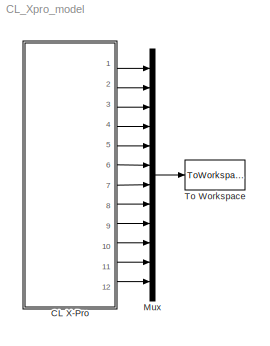
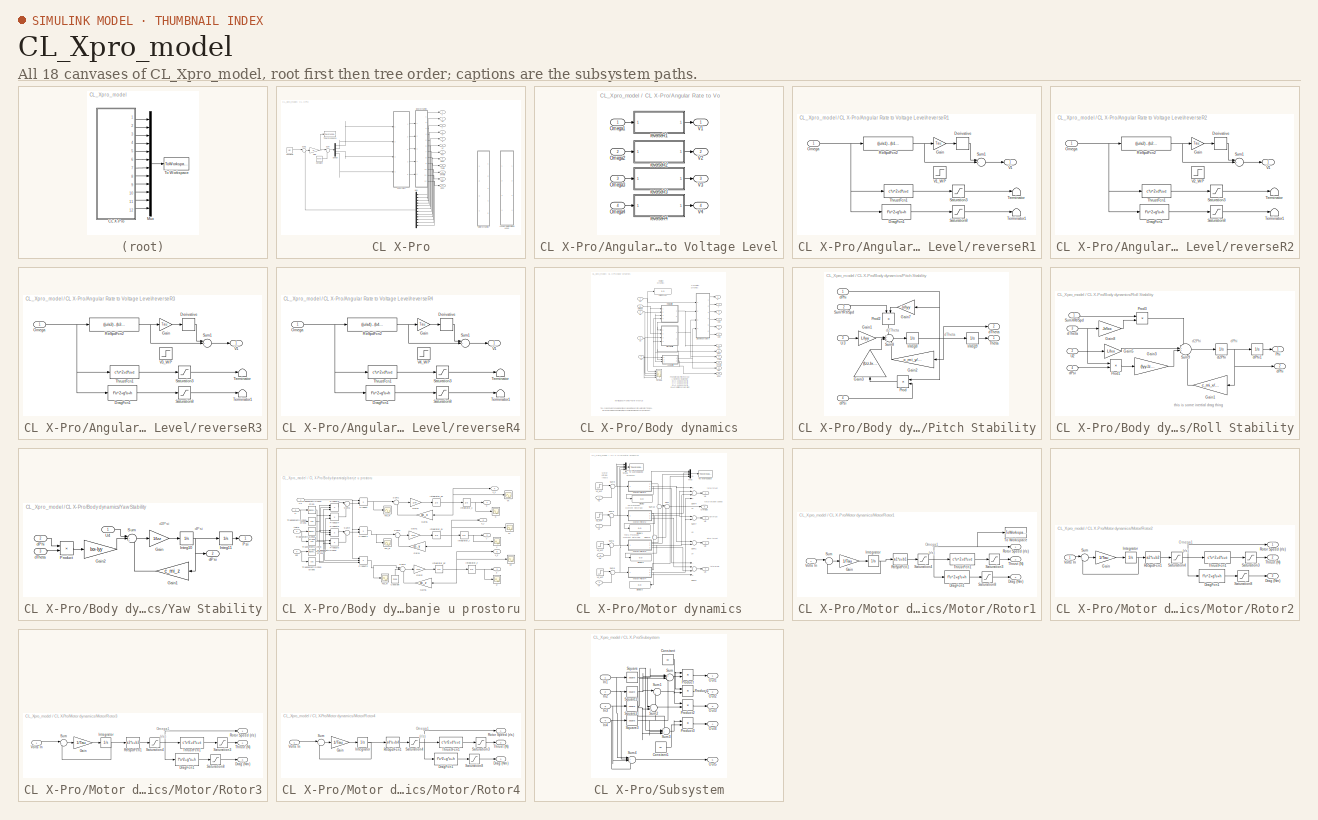
[diagram: thumbnail index - all 18 canvases of the model, root first then tree order]
MODEL CL_Xpro_model
KIND model
BLOCK [SubSystem] CL X-Pro
  Ports = [0, 12]
  RequestExecContextInheritance = off
  SID = 1
  Variant = off
BLOCK [SubSystem] CL X-Pro/Angular Rate to Voltage Level
  Ports = [4, 4]
  RequestExecContextInheritance = off
  SID = 640
  Variant = off
BLOCK [Inport] CL X-Pro/Angular Rate to Voltage Level/Omega1
  IconDisplay = Port number
  SID = 635
BLOCK [Inport] CL X-Pro/Angular Rate to Voltage Level/Omega2
  IconDisplay = Port number
  Port = 2
  SID = 636
BLOCK [Inport] CL X-Pro/Angular Rate to Voltage Level/Omega3
  IconDisplay = Port number
  Port = 3
  SID = 637
BLOCK [Inport] CL X-Pro/Angular Rate to Voltage Level/Omega4
  IconDisplay = Port number
  Port = 4
  SID = 638
BLOCK [Outport] CL X-Pro/Angular Rate to Voltage Level/V1
  IconDisplay = Port number
  SID = 643
BLOCK [Outport] CL X-Pro/Angular Rate to Voltage Level/V2
  IconDisplay = Port number
  Port = 2
  SID = 644
BLOCK [Outport] CL X-Pro/Angular Rate to Voltage Level/V3
  IconDisplay = Port number
  Port = 3
  SID = 645
BLOCK [Outport] CL X-Pro/Angular Rate to Voltage Level/V4
  IconDisplay = Port number
  Port = 4
  SID = 646
BLOCK [SubSystem] CL X-Pro/Angular Rate to Voltage Level/reverseR1
  Ports = [1, 1]
  RequestExecContextInheritance = off
  SID = 499
  Variant = off
BLOCK [Derivative] CL X-Pro/Angular Rate to Voltage Level/reverseR1/Derivative
  SID = 501
BLOCK [Fcn] CL X-Pro/Angular Rate to Voltage Level/reverseR1/DragFcn1
  Expr = f*u^2+g*u+h
  SID = 524
BLOCK [Gain] CL X-Pro/Angular Rate to Voltage Level/reverseR1/Gain
  Gain = Tau
  OutDataTypeStr = Inherit: Inherit via internal rule
  ParamDataTypeStr = Inherit: Inherit via internal rule
  SID = 577
  SaturateOnIntegerOverflow = off
BLOCK [Inport] CL X-Pro/Angular Rate to Voltage Level/reverseR1/Omega
  IconDisplay = Port number
  SID = 500
BLOCK [Fcn] CL X-Pro/Angular Rate to Voltage Level/reverseR1/RtrSpdFcn2
  Expr = ((u/a1) - (b1/a1))
  SID = 506
BLOCK [Saturate] CL X-Pro/Angular Rate to Voltage Level/reverseR1/Saturation3
  InputPortMap = u0
  LowerLimit = 0
  Ports = [1, 1]
  SID = 525
  UpperLimit = 15
BLOCK [Saturate] CL X-Pro/Angular Rate to Voltage Level/reverseR1/Saturation8
  InputPortMap = u0
  LowerLimit = 0
  Ports = [1, 1]
  SID = 526
  UpperLimit = 1
BLOCK [Sum] CL X-Pro/Angular Rate to Voltage Level/reverseR1/Sum1
  IconShape = round
  InputSameDT = off
  Inputs = |+++
  OutDataTypeStr = Inherit: Inherit via internal rule
  Ports = [3, 1]
  SID = 512
  SaturateOnIntegerOverflow = off
BLOCK [Terminator] CL X-Pro/Angular Rate to Voltage Level/reverseR1/Terminator
  SID = 530
BLOCK [Terminator] CL X-Pro/Angular Rate to Voltage Level/reverseR1/Terminator1
  SID = 531
BLOCK [Fcn] CL X-Pro/Angular Rate to Voltage Level/reverseR1/ThrustFcn1
  Expr = c*u^2+d*u+e
  SID = 527
BLOCK [Outport] CL X-Pro/Angular Rate to Voltage Level/reverseR1/V1
  IconDisplay = Port number
  SID = 520
BLOCK [Step] CL X-Pro/Angular Rate to Voltage Level/reverseR1/V1_WP
  After = V1_WP
  Before = V1_WP
  SID = 523
  SampleTime = 0
  Time = 0
BLOCK [SubSystem] CL X-Pro/Angular Rate to Voltage Level/reverseR2
  Ports = [1, 1]
  RequestExecContextInheritance = off
  SID = 582
  Variant = off
BLOCK [Derivative] CL X-Pro/Angular Rate to Voltage Level/reverseR2/Derivative
  SID = 584
BLOCK [Fcn] CL X-Pro/Angular Rate to Voltage Level/reverseR2/DragFcn1
  Expr = f*u^2+g*u+h
  SID = 585
BLOCK [Gain] CL X-Pro/Angular Rate to Voltage Level/reverseR2/Gain
  Gain = Tau
  OutDataTypeStr = Inherit: Inherit via internal rule
  ParamDataTypeStr = Inherit: Inherit via internal rule
  SID = 586
  SaturateOnIntegerOverflow = off
BLOCK [Inport] CL X-Pro/Angular Rate to Voltage Level/reverseR2/Omega
  IconDisplay = Port number
  SID = 583
BLOCK [Fcn] CL X-Pro/Angular Rate to Voltage Level/reverseR2/RtrSpdFcn2
  Expr = ((u/a2) - (b2/a2))
  SID = 587
BLOCK [Saturate] CL X-Pro/Angular Rate to Voltage Level/reverseR2/Saturation3
  InputPortMap = u0
  LowerLimit = 0
  Ports = [1, 1]
  SID = 588
  UpperLimit = 15
BLOCK [Saturate] CL X-Pro/Angular Rate to Voltage Level/reverseR2/Saturation8
  InputPortMap = u0
  LowerLimit = 0
  Ports = [1, 1]
  SID = 589
  UpperLimit = 1
BLOCK [Sum] CL X-Pro/Angular Rate to Voltage Level/reverseR2/Sum1
  IconShape = round
  InputSameDT = off
  Inputs = |+++
  OutDataTypeStr = Inherit: Inherit via internal rule
  Ports = [3, 1]
  SID = 590
  SaturateOnIntegerOverflow = off
BLOCK [Terminator] CL X-Pro/Angular Rate to Voltage Level/reverseR2/Terminator
  SID = 591
BLOCK [Terminator] CL X-Pro/Angular Rate to Voltage Level/reverseR2/Terminator1
  SID = 592
BLOCK [Fcn] CL X-Pro/Angular Rate to Voltage Level/reverseR2/ThrustFcn1
  Expr = c*u^2+d*u+e
  SID = 593
BLOCK [Outport] CL X-Pro/Angular Rate to Voltage Level/reverseR2/V1
  IconDisplay = Port number
  SID = 595
BLOCK [Step] CL X-Pro/Angular Rate to Voltage Level/reverseR2/V2_WP
  After = V2_WP
  Before = V2_WP
  SID = 594
  SampleTime = 0
  Time = 0
BLOCK [SubSystem] CL X-Pro/Angular Rate to Voltage Level/reverseR3
  Ports = [1, 1]
  RequestExecContextInheritance = off
  SID = 597
  Variant = off
BLOCK [Derivative] CL X-Pro/Angular Rate to Voltage Level/reverseR3/Derivative
  SID = 599
BLOCK [Fcn] CL X-Pro/Angular Rate to Voltage Level/reverseR3/DragFcn1
  Expr = f*u^2+g*u+h
  SID = 600
BLOCK [Gain] CL X-Pro/Angular Rate to Voltage Level/reverseR3/Gain
  Gain = Tau
  OutDataTypeStr = Inherit: Inherit via internal rule
  ParamDataTypeStr = Inherit: Inherit via internal rule
  SID = 601
  SaturateOnIntegerOverflow = off
BLOCK [Inport] CL X-Pro/Angular Rate to Voltage Level/reverseR3/Omega
  IconDisplay = Port number
  SID = 598
BLOCK [Fcn] CL X-Pro/Angular Rate to Voltage Level/reverseR3/RtrSpdFcn2
  Expr = ((u/a3) - (b3/a3))
  SID = 602
BLOCK [Saturate] CL X-Pro/Angular Rate to Voltage Level/reverseR3/Saturation3
  InputPortMap = u0
  LowerLimit = 0
  Ports = [1, 1]
  SID = 603
  UpperLimit = 15
BLOCK [Saturate] CL X-Pro/Angular Rate to Voltage Level/reverseR3/Saturation8
  InputPortMap = u0
  LowerLimit = 0
  Ports = [1, 1]
  SID = 604
  UpperLimit = 1
BLOCK [Sum] CL X-Pro/Angular Rate to Voltage Level/reverseR3/Sum1
  IconShape = round
  InputSameDT = off
  Inputs = |+++
  OutDataTypeStr = Inherit: Inherit via internal rule
  Ports = [3, 1]
  SID = 605
  SaturateOnIntegerOverflow = off
BLOCK [Terminator] CL X-Pro/Angular Rate to Voltage Level/reverseR3/Terminator
  SID = 606
BLOCK [Terminator] CL X-Pro/Angular Rate to Voltage Level/reverseR3/Terminator1
  SID = 607
BLOCK [Fcn] CL X-Pro/Angular Rate to Voltage Level/reverseR3/ThrustFcn1
  Expr = c*u^2+d*u+e
  SID = 608
BLOCK [Outport] CL X-Pro/Angular Rate to Voltage Level/reverseR3/V1
  IconDisplay = Port number
  SID = 610
BLOCK [Step] CL X-Pro/Angular Rate to Voltage Level/reverseR3/V3_WP
  After = V3_WP
  Before = V3_WP
  SID = 609
  SampleTime = 0
  Time = 0
BLOCK [SubSystem] CL X-Pro/Angular Rate to Voltage Level/reverseR4
  Ports = [1, 1]
  RequestExecContextInheritance = off
  SID = 612
  Variant = off
BLOCK [Derivative] CL X-Pro/Angular Rate to Voltage Level/reverseR4/Derivative
  SID = 614
BLOCK [Fcn] CL X-Pro/Angular Rate to Voltage Level/reverseR4/DragFcn1
  Expr = f*u^2+g*u+h
  SID = 615
BLOCK [Gain] CL X-Pro/Angular Rate to Voltage Level/reverseR4/Gain
  Gain = Tau
  OutDataTypeStr = Inherit: Inherit via internal rule
  ParamDataTypeStr = Inherit: Inherit via internal rule
  SID = 616
  SaturateOnIntegerOverflow = off
BLOCK [Inport] CL X-Pro/Angular Rate to Voltage Level/reverseR4/Omega
  IconDisplay = Port number
  SID = 613
BLOCK [Fcn] CL X-Pro/Angular Rate to Voltage Level/reverseR4/RtrSpdFcn2
  Expr = ((u/a4) - (b4/a4))
  SID = 617
BLOCK [Saturate] CL X-Pro/Angular Rate to Voltage Level/reverseR4/Saturation3
  InputPortMap = u0
  LowerLimit = 0
  Ports = [1, 1]
  SID = 618
  UpperLimit = 15
BLOCK [Saturate] CL X-Pro/Angular Rate to Voltage Level/reverseR4/Saturation8
  InputPortMap = u0
  LowerLimit = 0
  Ports = [1, 1]
  SID = 619
  UpperLimit = 1
BLOCK [Sum] CL X-Pro/Angular Rate to Voltage Level/reverseR4/Sum1
  IconShape = round
  InputSameDT = off
  Inputs = |+++
  OutDataTypeStr = Inherit: Inherit via internal rule
  Ports = [3, 1]
  SID = 620
  SaturateOnIntegerOverflow = off
BLOCK [Terminator] CL X-Pro/Angular Rate to Voltage Level/reverseR4/Terminator
  SID = 621
BLOCK [Terminator] CL X-Pro/Angular Rate to Voltage Level/reverseR4/Terminator1
  SID = 622
BLOCK [Fcn] CL X-Pro/Angular Rate to Voltage Level/reverseR4/ThrustFcn1
  Expr = c*u^2+d*u+e
  SID = 623
BLOCK [Outport] CL X-Pro/Angular Rate to Voltage Level/reverseR4/V1
  IconDisplay = Port number
  SID = 625
BLOCK [Step] CL X-Pro/Angular Rate to Voltage Level/reverseR4/V4_WP
  After = V4_WP
  Before = V4_WP
  SID = 624
  SampleTime = 0
  Time = 0
BLOCK [SubSystem] CL X-Pro/Body dynamics
  Ports = [5, 12]
  RequestExecContextInheritance = off
  SID = 6
  Variant = off
BLOCK [Inport] CL X-Pro/Body dynamics/Omega
  IconDisplay = Port number
  Port = 5
  SID = 11
BLOCK [Outport] CL X-Pro/Body dynamics/Phi
  IconDisplay = Port number
  Port = 7
  SID = 122
BLOCK [SubSystem] CL X-Pro/Body dynamics/Pitch Stability
  Ports = [4, 2]
  RequestExecContextInheritance = off
  SID = 12
  Variant = off
BLOCK [Gain] CL X-Pro/Body dynamics/Pitch Stability/Gain1
  Gain = L/Iyy
  OutDataTypeStr = Inherit: Inherit via internal rule
  ParamDataTypeStr = Inherit: Inherit via internal rule
  SID = 17
  SaturateOnIntegerOverflow = off
BLOCK [Gain] CL X-Pro/Body dynamics/Pitch Stability/Gain2
  Gain = c_mi_y/Iyy
  OutDataTypeStr = Inherit: Inherit via internal rule
  ParamDataTypeStr = Inherit: Inherit via internal rule
  SID = 18
  SaturateOnIntegerOverflow = off
BLOCK [Gain] CL X-Pro/Body dynamics/Pitch Stability/Gain3
  Gain = (Izz-Ixx)/Iyy
  OutDataTypeStr = Inherit: Inherit via internal rule
  ParamDataTypeStr = Inherit: Inherit via internal rule
  SID = 19
  SaturateOnIntegerOverflow = off
BLOCK [Gain] CL X-Pro/Body dynamics/Pitch Stability/Gain7
  Gain = Jr/Iyy
  OutDataTypeStr = Inherit: Inherit via internal rule
  ParamDataTypeStr = Inherit: Inherit via internal rule
  SID = 20
  SaturateOnIntegerOverflow = off
BLOCK [Integrator] CL X-Pro/Body dynamics/Pitch Stability/Integ8
  InitialCondition = dtheta_0
  Ports = [1, 1]
  SID = 21
BLOCK [Integrator] CL X-Pro/Body dynamics/Pitch Stability/Integ9
  InitialCondition = theta_0
  LowerSaturationLimit = -pi/2
  Ports = [1, 1]
  SID = 22
  UpperSaturationLimit = pi/2
BLOCK [Product] CL X-Pro/Body dynamics/Pitch Stability/Prod
  InputSameDT = off
  OutDataTypeStr = Inherit: Inherit via internal rule
  Ports = [2, 1]
  SID = 23
  SaturateOnIntegerOverflow = off
BLOCK [Product] CL X-Pro/Body dynamics/Pitch Stability/Prod2
  InputSameDT = off
  OutDataTypeStr = Inherit: Inherit via internal rule
  Ports = [2, 1]
  SID = 24
  SaturateOnIntegerOverflow = off
BLOCK [Sum] CL X-Pro/Body dynamics/Pitch Stability/Sum8
  IconShape = round
  InputSameDT = off
  Inputs = +++-
  OutDataTypeStr = Inherit: Inherit via internal rule
  Ports = [4, 1]
  SID = 25
  SaturateOnIntegerOverflow = off
BLOCK [Inport] CL X-Pro/Body dynamics/Pitch Stability/SumYRtrSpd
  IconDisplay = Port number
  Port = 2
  SID = 14
BLOCK [Outport] CL X-Pro/Body dynamics/Pitch Stability/Theta
  IconDisplay = Port number
  SID = 26
BLOCK [Inport] CL X-Pro/Body dynamics/Pitch Stability/U3
  IconDisplay = Port number
  Port = 3
  SID = 15
BLOCK [Inport] CL X-Pro/Body dynamics/Pitch Stability/dPhi
  IconDisplay = Port number
  SID = 13
BLOCK [Inport] CL X-Pro/Body dynamics/Pitch Stability/dPsi
  IconDisplay = Port number
  Port = 4
  SID = 16
BLOCK [Outport] CL X-Pro/Body dynamics/Pitch Stability/dTheta
  IconDisplay = Port number
  Port = 2
  SID = 27
BLOCK [Outport] CL X-Pro/Body dynamics/Psi
  IconDisplay = Port number
  Port = 11
  SID = 124
BLOCK [SubSystem] CL X-Pro/Body dynamics/Roll Stability
  Ports = [4, 2]
  RequestExecContextInheritance = off
  SID = 30
  Variant = off
BLOCK [Gain] CL X-Pro/Body dynamics/Roll Stability/Gain1
  Gain = c_mi_x/Ixx
  OutDataTypeStr = Inherit: Inherit via internal rule
  ParamDataTypeStr = Inherit: Inherit via internal rule
  SID = 35
  SaturateOnIntegerOverflow = off
BLOCK [Gain] CL X-Pro/Body dynamics/Roll Stability/Gain3
  Gain = (Iyy-Izz)/Ixx
  OutDataTypeStr = Inherit: Inherit via internal rule
  ParamDataTypeStr = Inherit: Inherit via internal rule
  SID = 36
  SaturateOnIntegerOverflow = off
BLOCK [Gain] CL X-Pro/Body dynamics/Roll Stability/Gain5
  Gain = L/Ixx
  OutDataTypeStr = Inherit: Inherit via internal rule
  ParamDataTypeStr = Inherit: Inherit via internal rule
  SID = 37
  SaturateOnIntegerOverflow = off
BLOCK [Gain] CL X-Pro/Body dynamics/Roll Stability/Gain8
  Gain = Jr/Ixx
  OutDataTypeStr = Inherit: Inherit via internal rule
  ParamDataTypeStr = Inherit: Inherit via internal rule
  SID = 38
  SaturateOnIntegerOverflow = off
BLOCK [Outport] CL X-Pro/Body dynamics/Roll Stability/Phi
  IconDisplay = Port number
  SID = 44
BLOCK [Product] CL X-Pro/Body dynamics/Roll Stability/Prod1
  InputSameDT = off
  OutDataTypeStr = Inherit: Inherit via internal rule
  Ports = [2, 1]
  SID = 39
  SaturateOnIntegerOverflow = off
BLOCK [Product] CL X-Pro/Body dynamics/Roll Stability/Prod3
  InputSameDT = off
  OutDataTypeStr = Inherit: Inherit via internal rule
  Ports = [2, 1]
  SID = 40
  SaturateOnIntegerOverflow = off
BLOCK [Sum] CL X-Pro/Body dynamics/Roll Stability/Sum9
  IconShape = round
  InputSameDT = off
  Inputs = -++-
  OutDataTypeStr = Inherit: Inherit via internal rule
  Ports = [4, 1]
  SID = 41
  SaturateOnIntegerOverflow = off
BLOCK [Inport] CL X-Pro/Body dynamics/Roll Stability/SumXRtrSpd
  IconDisplay = Port number
  SID = 31
BLOCK [Inport] CL X-Pro/Body dynamics/Roll Stability/U2
  IconDisplay = Port number
  Port = 2
  SID = 32
BLOCK [Integrator] CL X-Pro/Body dynamics/Roll Stability/d2Phi
  InitialCondition = dfi_0
  Ports = [1, 1]
  SID = 42
BLOCK [Outport] CL X-Pro/Body dynamics/Roll Stability/dPhi
  IconDisplay = Port number
  Port = 2
  SID = 45
BLOCK [Integrator] CL X-Pro/Body dynamics/Roll Stability/dPhi1
  InitialCondition = fi_0
  LowerSaturationLimit = -pi/2
  Ports = [1, 1]
  SID = 43
  UpperSaturationLimit = pi/2
BLOCK [Inport] CL X-Pro/Body dynamics/Roll Stability/dPsi
  IconDisplay = Port number
  Port = 4
  SID = 34
BLOCK [Inport] CL X-Pro/Body dynamics/Roll Stability/dTheta
  IconDisplay = Port number
  Port = 3
  SID = 33
BLOCK [Outport] CL X-Pro/Body dynamics/Theta
  IconDisplay = Port number
  Port = 9
  SID = 123
BLOCK [Scope] CL X-Pro/Body dynamics/Torque
  NumInputPorts = 4
  Ports = [4]
  SID = 48
  ScopeSpecificationString = C++SS(StrPVP('Location','[772, 74, 1096, 662]'),StrPVP('Open','off'),StrPVP('ZoomMode','yonly'),MxPVP('AxesTitles',53,'struct(''axes1'',''%<SignalLabel>'',''axes2'',''%<SignalLabel>'',''axes3'',''%<SignalLabel>'',''axes4'',''%<SignalLabel>'')'),StrPVP('YMin','4.9725~-5~-5~-5'),StrPVP('YMax','5.015~5~5~5'),StrPVP('SaveName','ScopeData17'),StrPVP('DataFormat','StructureWithTime'),StrPVP('LimitDataPo...<+111ch>
BLOCK [Display] CL X-Pro/Body dynamics/TotalThrust
  Decimation = 1
  Ports = [1]
  SID = 49
BLOCK [Inport] CL X-Pro/Body dynamics/U1
  IconDisplay = Port number
  SID = 7
BLOCK [Inport] CL X-Pro/Body dynamics/U2
  IconDisplay = Port number
  Port = 2
  SID = 8
BLOCK [Inport] CL X-Pro/Body dynamics/U3
  IconDisplay = Port number
  Port = 3
  SID = 9
BLOCK [Inport] CL X-Pro/Body dynamics/U4
  IconDisplay = Port number
  Port = 4
  SID = 10
BLOCK [Outport] CL X-Pro/Body dynamics/Vx\n
  IconDisplay = Port number
  Port = 2
  SID = 240
BLOCK [Outport] CL X-Pro/Body dynamics/Vy
  IconDisplay = Port number
  Port = 4
  SID = 241
BLOCK [Outport] CL X-Pro/Body dynamics/Vz\n
  IconDisplay = Port number
  Port = 6
  SID = 242
BLOCK [Outport] CL X-Pro/Body dynamics/X
  IconDisplay = Port number
  SID = 119
BLOCK [Outport] CL X-Pro/Body dynamics/Y
  IconDisplay = Port number
  Port = 3
  SID = 120
BLOCK [SubSystem] CL X-Pro/Body dynamics/Yaw Stability
  Ports = [3, 2]
  RequestExecContextInheritance = off
  SID = 50
  Variant = off
BLOCK [Gain] CL X-Pro/Body dynamics/Yaw Stability/Gain
  Gain = 1/Izz
  OutDataTypeStr = Inherit: Inherit via internal rule
  ParamDataTypeStr = Inherit: Inherit via internal rule
  SID = 54
  SaturateOnIntegerOverflow = off
BLOCK [Gain] CL X-Pro/Body dynamics/Yaw Stability/Gain1
  Gain = c_mi_z
  OutDataTypeStr = Inherit: Inherit via internal rule
  ParamDataTypeStr = Inherit: Inherit via internal rule
  SID = 55
  SaturateOnIntegerOverflow = off
BLOCK [Gain] CL X-Pro/Body dynamics/Yaw Stability/Gain2
  Gain = Ixx-Iyy
  OutDataTypeStr = Inherit: Inherit via internal rule
  ParamDataTypeStr = Inherit: Inherit via internal rule
  SID = 56
  SaturateOnIntegerOverflow = off
BLOCK [Integrator] CL X-Pro/Body dynamics/Yaw Stability/Integ10
  InitialCondition = dpsi_0
  Ports = [1, 1]
  SID = 57
BLOCK [Integrator] CL X-Pro/Body dynamics/Yaw Stability/Integ11
  InitialCondition = psi_0
  Ports = [1, 1]
  SID = 58
BLOCK [Product] CL X-Pro/Body dynamics/Yaw Stability/Product
  InputSameDT = off
  OutDataTypeStr = Inherit: Inherit via internal rule
  Ports = [2, 1]
  SID = 59
  SaturateOnIntegerOverflow = off
BLOCK [Outport] CL X-Pro/Body dynamics/Yaw Stability/Psi
  IconDisplay = Port number
  SID = 61
BLOCK [Sum] CL X-Pro/Body dynamics/Yaw Stability/Sum
  IconShape = round
  InputSameDT = off
  Inputs = |++-
  OutDataTypeStr = Inherit: Inherit via internal rule
  Ports = [3, 1]
  SID = 60
  SaturateOnIntegerOverflow = off
BLOCK [Inport] CL X-Pro/Body dynamics/Yaw Stability/U4
  IconDisplay = Port number
  SID = 51
BLOCK [Inport] CL X-Pro/Body dynamics/Yaw Stability/dPhi
  IconDisplay = Port number
  Port = 2
  SID = 52
BLOCK [Outport] CL X-Pro/Body dynamics/Yaw Stability/dPsi
  IconDisplay = Port number
  Port = 2
  SID = 62
BLOCK [Inport] CL X-Pro/Body dynamics/Yaw Stability/dTheta
  IconDisplay = Port number
  Port = 3
  SID = 53
BLOCK [Outport] CL X-Pro/Body dynamics/Z
  IconDisplay = Port number
  Port = 5
  SID = 121
BLOCK [Outport] CL X-Pro/Body dynamics/dPhi
  IconDisplay = Port number
  Port = 8
  SID = 627
BLOCK [Outport] CL X-Pro/Body dynamics/dPsi
  IconDisplay = Port number
  Port = 12
  SID = 629
BLOCK [Outport] CL X-Pro/Body dynamics/dTheta
  IconDisplay = Port number
  Port = 10
  SID = 628
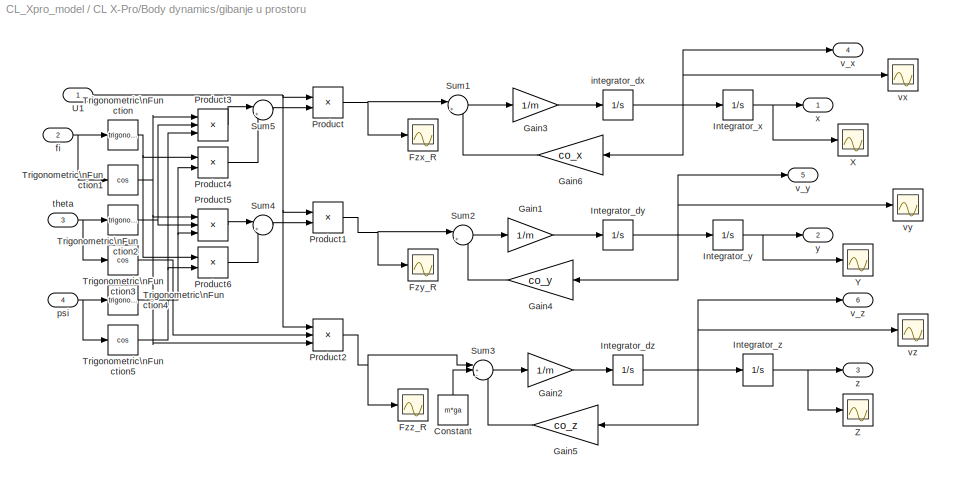
BLOCK [SubSystem] CL X-Pro/Body dynamics/gibanje u prostoru
  Ports = [4, 6]
  RequestExecContextInheritance = off
  SID = 65
  Variant = off
BLOCK [Constant] CL X-Pro/Body dynamics/gibanje u prostoru/Constant
  SID = 70
  Value = m*ga
BLOCK [Scope] CL X-Pro/Body dynamics/gibanje u prostoru/Fzx_R
  NumInputPorts = 1
  Ports = [1]
  SID = 71
  ScopeSpecificationString = Simulink.scopes.TimeScopeBlockCfg('CurrentConfiguration', extmgr.ConfigurationSet(extmgr.Configuration('Core','General UI',true),extmgr.Configuration('Core','Source UI',true),extmgr.Configuration('Sources','WiredSimulink',true,'DataLoggingVariableName','ScopeData10','DataLoggingSaveFormat','StructureWithTime','DataLoggingDecimation','1','DataLoggingDecimateData',true),extmgr.Configuration('Visuals...<+1647ch>
BLOCK [Scope] CL X-Pro/Body dynamics/gibanje u prostoru/Fzy_R
  NumInputPorts = 1
  Ports = [1]
  SID = 72
  ScopeSpecificationString = C++SS(StrPVP('Location','[178, 355, 502, 594]'),StrPVP('Open','off'),StrPVP('ZoomMode','xonly'),MxPVP('AxesTitles',53,'struct(''axes1'',''%<SignalLabel>'')'),StrPVP('SaveName','ScopeData24'),StrPVP('DataFormat','StructureWithTime'),StrPVP('LimitDataPoints','off'),StrPVP('BlockParamSampleTime','0'),StrPVP('Decimation','1'),StrPVP('BlockParamSampleInput','off'))
BLOCK [Scope] CL X-Pro/Body dynamics/gibanje u prostoru/Fzz_R
  NumInputPorts = 1
  Ports = [1]
  SID = 73
  ScopeSpecificationString = C++SS(StrPVP('Location','[108, 519, 432, 758]'),StrPVP('Open','off'),StrPVP('ZoomMode','yonly'),MxPVP('AxesTitles',53,'struct(''axes1'',''%<SignalLabel>'')'),StrPVP('YMin','4.9725'),StrPVP('YMax','5.015'),StrPVP('SaveName','ScopeData23'),StrPVP('DataFormat','StructureWithTime'),StrPVP('LimitDataPoints','off'),StrPVP('BlockParamSampleTime','0'),StrPVP('Decimation','1'),StrPVP('BlockParamSampleInput...<+9ch>
BLOCK [Gain] CL X-Pro/Body dynamics/gibanje u prostoru/Gain1
  Gain = 1/m
  OutDataTypeStr = Inherit: Inherit via internal rule
  ParamDataTypeStr = Inherit: Inherit via internal rule
  SID = 74
  SaturateOnIntegerOverflow = off
BLOCK [Gain] CL X-Pro/Body dynamics/gibanje u prostoru/Gain2
  Gain = 1/m
  OutDataTypeStr = Inherit: Inherit via internal rule
  ParamDataTypeStr = Inherit: Inherit via internal rule
  SID = 75
  SaturateOnIntegerOverflow = off
BLOCK [Gain] CL X-Pro/Body dynamics/gibanje u prostoru/Gain3
  Gain = 1/m
  OutDataTypeStr = Inherit: Inherit via internal rule
  ParamDataTypeStr = Inherit: Inherit via internal rule
  SID = 76
  SaturateOnIntegerOverflow = off
BLOCK [Gain] CL X-Pro/Body dynamics/gibanje u prostoru/Gain4
  Gain = co_y
  OutDataTypeStr = Inherit: Inherit via internal rule
  ParamDataTypeStr = Inherit: Inherit via internal rule
  SID = 77
  SaturateOnIntegerOverflow = off
BLOCK [Gain] CL X-Pro/Body dynamics/gibanje u prostoru/Gain5
  Gain = co_z
  OutDataTypeStr = Inherit: Inherit via internal rule
  ParamDataTypeStr = Inherit: Inherit via internal rule
  SID = 78
  SaturateOnIntegerOverflow = off
BLOCK [Gain] CL X-Pro/Body dynamics/gibanje u prostoru/Gain6
  Gain = co_x
  OutDataTypeStr = Inherit: Inherit via internal rule
  ParamDataTypeStr = Inherit: Inherit via internal rule
  SID = 79
  SaturateOnIntegerOverflow = off
BLOCK [Integrator] CL X-Pro/Body dynamics/gibanje u prostoru/Integrator_dy
  InitialCondition = dy_0
  LimitOutput = on
  LowerSaturationLimit = -10
  Ports = [1, 1]
  SID = 80
  UpperSaturationLimit = 10
BLOCK [Integrator] CL X-Pro/Body dynamics/gibanje u prostoru/Integrator_dz
  InitialCondition = dz_0
  LimitOutput = on
  LowerSaturationLimit = -10
  Ports = [1, 1]
  SID = 81
  UpperSaturationLimit = 10
BLOCK [Integrator] CL X-Pro/Body dynamics/gibanje u prostoru/Integrator_x
  InitialCondition = x_0
  Ports = [1, 1]
  SID = 82
BLOCK [Integrator] CL X-Pro/Body dynamics/gibanje u prostoru/Integrator_y
  InitialCondition = y_0
  Ports = [1, 1]
  SID = 83
BLOCK [Integrator] CL X-Pro/Body dynamics/gibanje u prostoru/Integrator_z
  InitialCondition = z_0
  Ports = [1, 1]
  SID = 84
BLOCK [Product] CL X-Pro/Body dynamics/gibanje u prostoru/Product
  InputSameDT = off
  OutDataTypeStr = Inherit: Inherit via internal rule
  Ports = [2, 1]
  SID = 85
  SaturateOnIntegerOverflow = off
BLOCK [Product] CL X-Pro/Body dynamics/gibanje u prostoru/Product1
  InputSameDT = off
  OutDataTypeStr = Inherit: Inherit via internal rule
  Ports = [2, 1]
  SID = 86
  SaturateOnIntegerOverflow = off
BLOCK [Product] CL X-Pro/Body dynamics/gibanje u prostoru/Product2
  InputSameDT = off
  Inputs = 3
  OutDataTypeStr = Inherit: Inherit via internal rule
  Ports = [3, 1]
  SID = 87
  SaturateOnIntegerOverflow = off
BLOCK [Product] CL X-Pro/Body dynamics/gibanje u prostoru/Product3
  InputSameDT = off
  Inputs = 3
  OutDataTypeStr = Inherit: Inherit via internal rule
  Ports = [3, 1]
  SID = 88
  SaturateOnIntegerOverflow = off
BLOCK [Product] CL X-Pro/Body dynamics/gibanje u prostoru/Product4
  InputSameDT = off
  OutDataTypeStr = Inherit: Inherit via internal rule
  Ports = [2, 1]
  SID = 89
  SaturateOnIntegerOverflow = off
BLOCK [Product] CL X-Pro/Body dynamics/gibanje u prostoru/Product5
  InputSameDT = off
  Inputs = 3
  OutDataTypeStr = Inherit: Inherit via internal rule
  Ports = [3, 1]
  SID = 90
  SaturateOnIntegerOverflow = off
BLOCK [Product] CL X-Pro/Body dynamics/gibanje u prostoru/Product6
  InputSameDT = off
  OutDataTypeStr = Inherit: Inherit via internal rule
  Ports = [2, 1]
  SID = 91
  SaturateOnIntegerOverflow = off
BLOCK [Sum] CL X-Pro/Body dynamics/gibanje u prostoru/Sum1
  IconShape = round
  InputSameDT = off
  Inputs = |+-
  OutDataTypeStr = Inherit: Inherit via internal rule
  Ports = [2, 1]
  SID = 92
  SaturateOnIntegerOverflow = off
BLOCK [Sum] CL X-Pro/Body dynamics/gibanje u prostoru/Sum2
  IconShape = round
  InputSameDT = off
  Inputs = |+-
  OutDataTypeStr = Inherit: Inherit via internal rule
  Ports = [2, 1]
  SID = 93
  SaturateOnIntegerOverflow = off
BLOCK [Sum] CL X-Pro/Body dynamics/gibanje u prostoru/Sum3
  IconShape = round
  InputSameDT = off
  Inputs = |+--
  OutDataTypeStr = Inherit: Inherit via internal rule
  Ports = [3, 1]
  SID = 94
  SaturateOnIntegerOverflow = off
BLOCK [Sum] CL X-Pro/Body dynamics/gibanje u prostoru/Sum4
  IconShape = round
  InputSameDT = off
  Inputs = |+-
  OutDataTypeStr = Inherit: Inherit via internal rule
  Ports = [2, 1]
  SID = 95
  SaturateOnIntegerOverflow = off
BLOCK [Sum] CL X-Pro/Body dynamics/gibanje u prostoru/Sum5
  IconShape = round
  InputSameDT = off
  Inputs = |++
  OutDataTypeStr = Inherit: Inherit via internal rule
  Ports = [2, 1]
  SID = 96
  SaturateOnIntegerOverflow = off
BLOCK [Trigonometry] CL X-Pro/Body dynamics/gibanje u prostoru/Trigonometric\nFunction
  Ports = [1, 1]
  SID = 97
BLOCK [Trigonometry] CL X-Pro/Body dynamics/gibanje u prostoru/Trigonometric\nFunction1
  Operator = cos
  Ports = [1, 1]
  SID = 98
BLOCK [Trigonometry] CL X-Pro/Body dynamics/gibanje u prostoru/Trigonometric\nFunction2
  Ports = [1, 1]
  SID = 99
BLOCK [Trigonometry] CL X-Pro/Body dynamics/gibanje u prostoru/Trigonometric\nFunction3
  Operator = cos
  Ports = [1, 1]
  SID = 100
BLOCK [Trigonometry] CL X-Pro/Body dynamics/gibanje u prostoru/Trigonometric\nFunction4
  Ports = [1, 1]
  SID = 101
BLOCK [Trigonometry] CL X-Pro/Body dynamics/gibanje u prostoru/Trigonometric\nFunction5
  Operator = cos
  Ports = [1, 1]
  SID = 102
BLOCK [Inport] CL X-Pro/Body dynamics/gibanje u prostoru/U1
  IconDisplay = Port number
  SID = 66
BLOCK [Scope] CL X-Pro/Body dynamics/gibanje u prostoru/X
  NumInputPorts = 1
  Ports = [1]
  SID = 103
  ScopeSpecificationString = C++SS(StrPVP('Location','[164, 205, 488, 444]'),StrPVP('Open','off'),StrPVP('ZoomMode','xonly'),MxPVP('AxesTitles',53,'struct(''axes1'',''%<SignalLabel>'')'),StrPVP('YMin','-95'),StrPVP('YMax','-30'),StrPVP('SaveName','ScopeData14'),StrPVP('DataFormat','StructureWithTime'),StrPVP('LimitDataPoints','off'),StrPVP('BlockParamSampleTime','0'),StrPVP('Decimation','1'),StrPVP('BlockParamSampleInput','of...<+4ch>
BLOCK [Scope] CL X-Pro/Body dynamics/gibanje u prostoru/Y
  NumInputPorts = 1
  Ports = [1]
  SID = 104
  ScopeSpecificationString = C++SS(StrPVP('Location','[164, 205, 488, 444]'),StrPVP('Open','off'),StrPVP('ZoomMode','xonly'),MxPVP('AxesTitles',53,'struct(''axes1'',''%<SignalLabel>'')'),StrPVP('YMin','-95'),StrPVP('YMax','-30'),StrPVP('SaveName','ScopeData11'),StrPVP('DataFormat','StructureWithTime'),StrPVP('LimitDataPoints','off'),StrPVP('BlockParamSampleTime','0'),StrPVP('Decimation','1'),StrPVP('BlockParamSampleInput','of...<+4ch>
BLOCK [Scope] CL X-Pro/Body dynamics/gibanje u prostoru/Z
  NumInputPorts = 1
  Ports = [1]
  SID = 105
  ScopeSpecificationString = C++SS(StrPVP('Location','[441, 519, 765, 758]'),StrPVP('Open','off'),StrPVP('ZoomMode','xonly'),MxPVP('AxesTitles',53,'struct(''axes1'',''%<SignalLabel>'')'),StrPVP('YMin','-95'),StrPVP('YMax','-30'),StrPVP('SaveName','ScopeData34'),StrPVP('DataFormat','StructureWithTime'),StrPVP('LimitDataPoints','off'),StrPVP('BlockParamSampleTime','0'),StrPVP('Decimation','1'),StrPVP('BlockParamSampleInput','of...<+4ch>
BLOCK [Inport] CL X-Pro/Body dynamics/gibanje u prostoru/fi
  IconDisplay = Port number
  Port = 2
  SID = 67
BLOCK [Integrator] CL X-Pro/Body dynamics/gibanje u prostoru/integrator_dx
  InitialCondition = dx_0
  LimitOutput = on
  LowerSaturationLimit = -10
  Ports = [1, 1]
  SID = 106
  UpperSaturationLimit = 10
BLOCK [Inport] CL X-Pro/Body dynamics/gibanje u prostoru/psi
  IconDisplay = Port number
  Port = 4
  SID = 69
BLOCK [Inport] CL X-Pro/Body dynamics/gibanje u prostoru/theta
  IconDisplay = Port number
  Port = 3
  SID = 68
BLOCK [Outport] CL X-Pro/Body dynamics/gibanje u prostoru/v_x
  IconDisplay = Port number
  Port = 4
  SID = 113
BLOCK [Outport] CL X-Pro/Body dynamics/gibanje u prostoru/v_y
  IconDisplay = Port number
  Port = 5
  SID = 114
BLOCK [Outport] CL X-Pro/Body dynamics/gibanje u prostoru/v_z
  IconDisplay = Port number
  Port = 6
  SID = 115
BLOCK [Scope] CL X-Pro/Body dynamics/gibanje u prostoru/vx
  NumInputPorts = 1
  Ports = [1]
  SID = 107
  ScopeSpecificationString = C++SS(StrPVP('Location','[51, 268, 479, 593]'),StrPVP('Open','off'),StrPVP('ZoomMode','xonly'),MxPVP('AxesTitles',53,'struct(''axes1'',''%<SignalLabel>'')'),StrPVP('SaveName','ScopeData12'),StrPVP('DataFormat','StructureWithTime'),StrPVP('BlockParamSampleTime','0'),StrPVP('LimitDataPoints','on'),StrPVP('Decimation','1'),StrPVP('BlockParamSampleInput','off'))
BLOCK [Scope] CL X-Pro/Body dynamics/gibanje u prostoru/vy
  NumInputPorts = 1
  Ports = [1]
  SID = 108
  ScopeSpecificationString = C++SS(StrPVP('Location','[51, 268, 479, 593]'),StrPVP('Open','off'),StrPVP('ZoomMode','xonly'),MxPVP('AxesTitles',53,'struct(''axes1'',''%<SignalLabel>'')'),StrPVP('SaveName','ScopeData9'),StrPVP('DataFormat','StructureWithTime'),StrPVP('BlockParamSampleTime','0'),StrPVP('LimitDataPoints','on'),StrPVP('Decimation','1'),StrPVP('BlockParamSampleInput','off'))
BLOCK [Scope] CL X-Pro/Body dynamics/gibanje u prostoru/vz
  NumInputPorts = 1
  Ports = [1]
  SID = 109
  ScopeSpecificationString = C++SS(StrPVP('Location','[51, 268, 479, 593]'),StrPVP('Open','off'),StrPVP('ZoomMode','xonly'),MxPVP('AxesTitles',53,'struct(''axes1'',''%<SignalLabel>'')'),StrPVP('SaveName','ScopeData25'),StrPVP('DataFormat','StructureWithTime'),StrPVP('BlockParamSampleTime','0'),StrPVP('LimitDataPoints','on'),StrPVP('Decimation','1'),StrPVP('BlockParamSampleInput','off'))
BLOCK [Outport] CL X-Pro/Body dynamics/gibanje u prostoru/x
  IconDisplay = Port number
  SID = 110
BLOCK [Outport] CL X-Pro/Body dynamics/gibanje u prostoru/y
  IconDisplay = Port number
  Port = 2
  SID = 111
BLOCK [Outport] CL X-Pro/Body dynamics/gibanje u prostoru/z
  IconDisplay = Port number
  Port = 3
  SID = 112
BLOCK [Constant] CL X-Pro/Constant
  SID = 724
  Value = hover
BLOCK [Constant] CL X-Pro/Constant1
  SID = 757
  Value = Xref
BLOCK [Demux] CL X-Pro/Demux
  DisplayOption = bar
  Ports = [1, 4]
  SID = 656
BLOCK [Gain] CL X-Pro/Gain
  Gain = -K
  Multiplication = Matrix(K*u) (u vector)
  OutDataTypeStr = Inherit: Inherit via internal rule
  ParamDataTypeStr = Inherit: Inherit via internal rule
  SID = 655
  SaturateOnIntegerOverflow = off
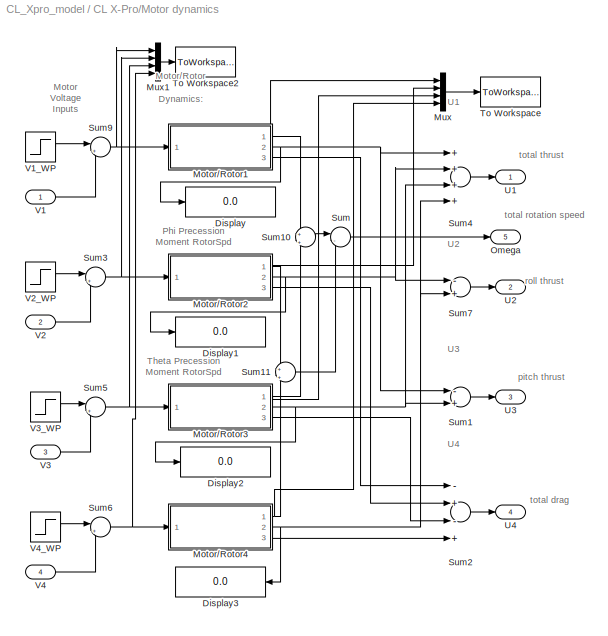
BLOCK [SubSystem] CL X-Pro/Motor dynamics
  Ports = [4, 5]
  RequestExecContextInheritance = off
  SID = 130
  Variant = off
BLOCK [Display] CL X-Pro/Motor dynamics/Display
  Decimation = 1
  Ports = [1]
  SID = 135
BLOCK [Display] CL X-Pro/Motor dynamics/Display1
  Decimation = 1
  Ports = [1]
  SID = 136
BLOCK [Display] CL X-Pro/Motor dynamics/Display2
  Decimation = 1
  Ports = [1]
  SID = 137
BLOCK [Display] CL X-Pro/Motor dynamics/Display3
  Decimation = 1
  Ports = [1]
  SID = 138
BLOCK [SubSystem] CL X-Pro/Motor dynamics/Motor//Rotor1
  Ports = [1, 3]
  RequestExecContextInheritance = off
  SID = 139
  Variant = off
BLOCK [Outport] CL X-Pro/Motor dynamics/Motor//Rotor1/Drag (Nm)
  IconDisplay = Port number
  Port = 3
  SID = 152
BLOCK [Fcn] CL X-Pro/Motor dynamics/Motor//Rotor1/DragFcn1
  Expr = f*u^2+g*u+h
  SID = 141
BLOCK [Gain] CL X-Pro/Motor dynamics/Motor//Rotor1/Gain
  Gain = 1/Tau
  OutDataTypeStr = Inherit: Inherit via internal rule
  ParamDataTypeStr = Inherit: Inherit via internal rule
  SID = 142
  SaturateOnIntegerOverflow = off
BLOCK [Integrator] CL X-Pro/Motor dynamics/Motor//Rotor1/Integrator
  InitialCondition = d_omega_R10
  Ports = [1, 1]
  SID = 143
BLOCK [Outport] CL X-Pro/Motor dynamics/Motor//Rotor1/Rotor Speed (r//s)
  IconDisplay = Port number
  SID = 150
BLOCK [Fcn] CL X-Pro/Motor dynamics/Motor//Rotor1/RtrSpdFcn1
  Expr = a1*u+b1
  SID = 144
BLOCK [Saturate] CL X-Pro/Motor dynamics/Motor//Rotor1/Saturation3
  InputPortMap = u0
  LowerLimit = 0
  Ports = [1, 1]
  SID = 145
  UpperLimit = 15
BLOCK [Saturate] CL X-Pro/Motor dynamics/Motor//Rotor1/Saturation4
  InputPortMap = u0
  LowerLimit = 0
  Ports = [1, 1]
  SID = 146
  UpperLimit = 250
BLOCK [Saturate] CL X-Pro/Motor dynamics/Motor//Rotor1/Saturation8
  InputPortMap = u0
  LowerLimit = 0
  Ports = [1, 1]
  SID = 147
  UpperLimit = 1
BLOCK [Sum] CL X-Pro/Motor dynamics/Motor//Rotor1/Sum
  IconShape = round
  InputSameDT = off
  Inputs = |+-
  OutDataTypeStr = Inherit: Inherit via internal rule
  Ports = [2, 1]
  SID = 148
  SaturateOnIntegerOverflow = off
BLOCK [Outport] CL X-Pro/Motor dynamics/Motor//Rotor1/Thrust (N)
  IconDisplay = Port number
  Port = 2
  SID = 151
BLOCK [Fcn] CL X-Pro/Motor dynamics/Motor//Rotor1/ThrustFcn1
  Expr = c*u^2+d*u+e
  SID = 149
BLOCK [ToWorkspace] CL X-Pro/Motor dynamics/Motor//Rotor1/To Workspace
  FixptAsFi = on
  MaxDataPoints = inf
  Ports = [1]
  SID = 247
  SampleTime = -1
  Save2DSignal = 3-D array (concatenate along third dimension)
  SaveFormat = Timeseries
  VariableName = rotorspeed
BLOCK [Inport] CL X-Pro/Motor dynamics/Motor//Rotor1/Volts In
  IconDisplay = Port number
  SID = 140
BLOCK [SubSystem] CL X-Pro/Motor dynamics/Motor//Rotor2
  Ports = [1, 3]
  RequestExecContextInheritance = off
  SID = 154
  Variant = off
BLOCK [Outport] CL X-Pro/Motor dynamics/Motor//Rotor2/Drag (Nm)
  IconDisplay = Port number
  Port = 3
  SID = 167
BLOCK [Fcn] CL X-Pro/Motor dynamics/Motor//Rotor2/DragFcn1
  Expr = f*u^2+g*u+h
  SID = 156
BLOCK [Gain] CL X-Pro/Motor dynamics/Motor//Rotor2/Gain
  Gain = 1/Tau
  OutDataTypeStr = Inherit: Inherit via internal rule
  ParamDataTypeStr = Inherit: Inherit via internal rule
  SID = 157
  SaturateOnIntegerOverflow = off
BLOCK [Integrator] CL X-Pro/Motor dynamics/Motor//Rotor2/Integrator
  InitialCondition = d_omega_R20
  Ports = [1, 1]
  SID = 158
BLOCK [Outport] CL X-Pro/Motor dynamics/Motor//Rotor2/Rotor Speed (r//s)
  IconDisplay = Port number
  SID = 165
BLOCK [Fcn] CL X-Pro/Motor dynamics/Motor//Rotor2/RtrSpdFcn1
  Expr = a2*u+b2
  SID = 159
BLOCK [Saturate] CL X-Pro/Motor dynamics/Motor//Rotor2/Saturation3
  InputPortMap = u0
  LowerLimit = 0
  Ports = [1, 1]
  SID = 160
  UpperLimit = 15
BLOCK [Saturate] CL X-Pro/Motor dynamics/Motor//Rotor2/Saturation4
  InputPortMap = u0
  LowerLimit = 0
  Ports = [1, 1]
  SID = 161
  UpperLimit = 250
BLOCK [Saturate] CL X-Pro/Motor dynamics/Motor//Rotor2/Saturation8
  InputPortMap = u0
  LowerLimit = 0
  Ports = [1, 1]
  SID = 162
  UpperLimit = 1
BLOCK [Sum] CL X-Pro/Motor dynamics/Motor//Rotor2/Sum
  IconShape = round
  InputSameDT = off
  Inputs = |+-
  OutDataTypeStr = Inherit: Inherit via internal rule
  Ports = [2, 1]
  SID = 163
  SaturateOnIntegerOverflow = off
BLOCK [Outport] CL X-Pro/Motor dynamics/Motor//Rotor2/Thrust (N)
  IconDisplay = Port number
  Port = 2
  SID = 166
BLOCK [Fcn] CL X-Pro/Motor dynamics/Motor//Rotor2/ThrustFcn1
  Expr = c*u^2+d*u+e
  SID = 164
BLOCK [Inport] CL X-Pro/Motor dynamics/Motor//Rotor2/Volts In
  IconDisplay = Port number
  SID = 155
BLOCK [SubSystem] CL X-Pro/Motor dynamics/Motor//Rotor3
  Ports = [1, 3]
  RequestExecContextInheritance = off
  SID = 169
  Variant = off
BLOCK [Outport] CL X-Pro/Motor dynamics/Motor//Rotor3/Drag (Nm)
  IconDisplay = Port number
  Port = 3
  SID = 182
BLOCK [Fcn] CL X-Pro/Motor dynamics/Motor//Rotor3/DragFcn1
  Expr = f*u^2+g*u+h
  SID = 171
BLOCK [Gain] CL X-Pro/Motor dynamics/Motor//Rotor3/Gain
  Gain = 1/Tau
  OutDataTypeStr = Inherit: Inherit via internal rule
  ParamDataTypeStr = Inherit: Inherit via internal rule
  SID = 172
  SaturateOnIntegerOverflow = off
BLOCK [Integrator] CL X-Pro/Motor dynamics/Motor//Rotor3/Integrator
  InitialCondition = d_omega_R30
  Ports = [1, 1]
  SID = 173
BLOCK [Outport] CL X-Pro/Motor dynamics/Motor//Rotor3/Rotor Speed (r//s)
  IconDisplay = Port number
  SID = 180
BLOCK [Fcn] CL X-Pro/Motor dynamics/Motor//Rotor3/RtrSpdFcn1
  Expr = a3*u+b3
  SID = 174
BLOCK [Saturate] CL X-Pro/Motor dynamics/Motor//Rotor3/Saturation3
  InputPortMap = u0
  LowerLimit = 0
  Ports = [1, 1]
  SID = 175
  UpperLimit = 15
BLOCK [Saturate] CL X-Pro/Motor dynamics/Motor//Rotor3/Saturation4
  InputPortMap = u0
  LowerLimit = 0
  Ports = [1, 1]
  SID = 176
  UpperLimit = 250
BLOCK [Saturate] CL X-Pro/Motor dynamics/Motor//Rotor3/Saturation8
  InputPortMap = u0
  LowerLimit = 0
  Ports = [1, 1]
  SID = 177
  UpperLimit = 1
BLOCK [Sum] CL X-Pro/Motor dynamics/Motor//Rotor3/Sum
  IconShape = round
  InputSameDT = off
  Inputs = |+-
  OutDataTypeStr = Inherit: Inherit via internal rule
  Ports = [2, 1]
  SID = 178
  SaturateOnIntegerOverflow = off
BLOCK [Outport] CL X-Pro/Motor dynamics/Motor//Rotor3/Thrust (N)
  IconDisplay = Port number
  Port = 2
  SID = 181
BLOCK [Fcn] CL X-Pro/Motor dynamics/Motor//Rotor3/ThrustFcn1
  Expr = c*u^2+d*u+e
  SID = 179
BLOCK [Inport] CL X-Pro/Motor dynamics/Motor//Rotor3/Volts In
  IconDisplay = Port number
  SID = 170
BLOCK [SubSystem] CL X-Pro/Motor dynamics/Motor//Rotor4
  Ports = [1, 3]
  RequestExecContextInheritance = off
  SID = 184
  Variant = off
BLOCK [Outport] CL X-Pro/Motor dynamics/Motor//Rotor4/Drag (Nm)
  IconDisplay = Port number
  Port = 3
  SID = 197
BLOCK [Fcn] CL X-Pro/Motor dynamics/Motor//Rotor4/DragFcn1
  Expr = f*u^2+g*u+h
  SID = 186
BLOCK [Gain] CL X-Pro/Motor dynamics/Motor//Rotor4/Gain
  Gain = 1/Tau
  OutDataTypeStr = Inherit: Inherit via internal rule
  ParamDataTypeStr = Inherit: Inherit via internal rule
  SID = 187
  SaturateOnIntegerOverflow = off
BLOCK [Integrator] CL X-Pro/Motor dynamics/Motor//Rotor4/Integrator
  InitialCondition = d_omega_R40
  Ports = [1, 1]
  SID = 188
BLOCK [Outport] CL X-Pro/Motor dynamics/Motor//Rotor4/Rotor Speed (r//s)
  IconDisplay = Port number
  SID = 195
BLOCK [Fcn] CL X-Pro/Motor dynamics/Motor//Rotor4/RtrSpdFcn1
  Expr = a4*u+b4
  SID = 189
BLOCK [Saturate] CL X-Pro/Motor dynamics/Motor//Rotor4/Saturation3
  InputPortMap = u0
  LowerLimit = 0
  Ports = [1, 1]
  SID = 190
  UpperLimit = 15
BLOCK [Saturate] CL X-Pro/Motor dynamics/Motor//Rotor4/Saturation4
  InputPortMap = u0
  LowerLimit = 0
  Ports = [1, 1]
  SID = 191
  UpperLimit = 250
BLOCK [Saturate] CL X-Pro/Motor dynamics/Motor//Rotor4/Saturation8
  InputPortMap = u0
  LowerLimit = 0
  Ports = [1, 1]
  SID = 192
  UpperLimit = 1
BLOCK [Sum] CL X-Pro/Motor dynamics/Motor//Rotor4/Sum
  IconShape = round
  InputSameDT = off
  Inputs = |+-
  OutDataTypeStr = Inherit: Inherit via internal rule
  Ports = [2, 1]
  SID = 193
  SaturateOnIntegerOverflow = off
BLOCK [Outport] CL X-Pro/Motor dynamics/Motor//Rotor4/Thrust (N)
  IconDisplay = Port number
  Port = 2
  SID = 196
BLOCK [Fcn] CL X-Pro/Motor dynamics/Motor//Rotor4/ThrustFcn1
  Expr = c*u^2+d*u+e
  SID = 194
BLOCK [Inport] CL X-Pro/Motor dynamics/Motor//Rotor4/Volts In
  IconDisplay = Port number
  SID = 185
BLOCK [Mux] CL X-Pro/Motor dynamics/Mux
  DisplayOption = bar
  Ports = [4, 1]
  SID = 689
BLOCK [Mux] CL X-Pro/Motor dynamics/Mux1
  DisplayOption = bar
  Ports = [4, 1]
  SID = 687
BLOCK [Outport] CL X-Pro/Motor dynamics/Omega
  IconDisplay = Port number
  Port = 5
  SID = 219
BLOCK [Sum] CL X-Pro/Motor dynamics/Sum
  IconShape = round
  InputSameDT = off
  Inputs = |-+
  OutDataTypeStr = Inherit: Inherit via internal rule
  Ports = [2, 1]
  SID = 199
  SaturateOnIntegerOverflow = off
BLOCK [Sum] CL X-Pro/Motor dynamics/Sum1
  InputSameDT = off
  Inputs = -+
  OutDataTypeStr = Inherit: Inherit via internal rule
  Ports = [2, 1]
  SID = 200
  SaturateOnIntegerOverflow = off
BLOCK [Sum] CL X-Pro/Motor dynamics/Sum10
  IconShape = round
  InputSameDT = off
  Inputs = +|+
  OutDataTypeStr = Inherit: Inherit via internal rule
  Ports = [2, 1]
  SID = 201
  SaturateOnIntegerOverflow = off
BLOCK [Sum] CL X-Pro/Motor dynamics/Sum11
  IconShape = round
  InputSameDT = off
  Inputs = +|+
  OutDataTypeStr = Inherit: Inherit via internal rule
  Ports = [2, 1]
  SID = 202
  SaturateOnIntegerOverflow = off
BLOCK [Sum] CL X-Pro/Motor dynamics/Sum2
  InputSameDT = off
  Inputs = -+-+
  OutDataTypeStr = Inherit: Inherit via internal rule
  Ports = [4, 1]
  SID = 203
  SaturateOnIntegerOverflow = off
BLOCK [Sum] CL X-Pro/Motor dynamics/Sum3
  IconShape = round
  InputSameDT = off
  Inputs = |++
  OutDataTypeStr = Inherit: Inherit via internal rule
  Ports = [2, 1]
  SID = 204
  SaturateOnIntegerOverflow = off
BLOCK [Sum] CL X-Pro/Motor dynamics/Sum4
  InputSameDT = off
  Inputs = ++++
  OutDataTypeStr = Inherit: Inherit via internal rule
  Ports = [4, 1]
  SID = 205
  SaturateOnIntegerOverflow = off
BLOCK [Sum] CL X-Pro/Motor dynamics/Sum5
  IconShape = round
  InputSameDT = off
  Inputs = |++
  OutDataTypeStr = Inherit: Inherit via internal rule
  Ports = [2, 1]
  SID = 206
  SaturateOnIntegerOverflow = off
BLOCK [Sum] CL X-Pro/Motor dynamics/Sum6
  IconShape = round
  InputSameDT = off
  Inputs = |++
  OutDataTypeStr = Inherit: Inherit via internal rule
  Ports = [2, 1]
  SID = 207
  SaturateOnIntegerOverflow = off
BLOCK [Sum] CL X-Pro/Motor dynamics/Sum7
  InputSameDT = off
  Inputs = -+
  OutDataTypeStr = Inherit: Inherit via internal rule
  Ports = [2, 1]
  SID = 208
  SaturateOnIntegerOverflow = off
BLOCK [Sum] CL X-Pro/Motor dynamics/Sum9
  IconShape = round
  InputSameDT = off
  Inputs = |++
  OutDataTypeStr = Inherit: Inherit via internal rule
  Ports = [2, 1]
  SID = 209
  SaturateOnIntegerOverflow = off
BLOCK [ToWorkspace] CL X-Pro/Motor dynamics/To Workspace
  FixptAsFi = on
  MaxDataPoints = inf
  Ports = [1]
  SID = 690
  SampleTime = -1
  Save2DSignal = 3-D array (concatenate along third dimension)
  SaveFormat = Timeseries
  VariableName = rotorspeeds
BLOCK [ToWorkspace] CL X-Pro/Motor dynamics/To Workspace2
  FixptAsFi = on
  MaxDataPoints = inf
  Ports = [1]
  SID = 688
  SampleTime = -1
  Save2DSignal = 3-D array (concatenate along third dimension)
  SaveFormat = Timeseries
  VariableName = voltages
BLOCK [Outport] CL X-Pro/Motor dynamics/U1
  IconDisplay = Port number
  SID = 215
BLOCK [Outport] CL X-Pro/Motor dynamics/U2
  IconDisplay = Port number
  Port = 2
  SID = 216
BLOCK [Outport] CL X-Pro/Motor dynamics/U3
  IconDisplay = Port number
  Port = 3
  SID = 217
BLOCK [Outport] CL X-Pro/Motor dynamics/U4
  IconDisplay = Port number
  Port = 4
  SID = 218
BLOCK [Inport] CL X-Pro/Motor dynamics/V1
  IconDisplay = Port number
  SID = 131
BLOCK [Step] CL X-Pro/Motor dynamics/V1_WP
  After = V1_WP
  Before = V1_WP
  SID = 211
  SampleTime = 0
  Time = 0
BLOCK [Inport] CL X-Pro/Motor dynamics/V2
  IconDisplay = Port number
  Port = 2
  SID = 132
BLOCK [Step] CL X-Pro/Motor dynamics/V2_WP
  After = V2_WP
  Before = V2_WP
  SID = 212
  SampleTime = 0
  Time = 0
BLOCK [Inport] CL X-Pro/Motor dynamics/V3
  IconDisplay = Port number
  Port = 3
  SID = 133
BLOCK [Step] CL X-Pro/Motor dynamics/V3_WP
  After = V3_WP
  Before = V3_WP
  SID = 213
  SampleTime = 0
  Time = 0
BLOCK [Inport] CL X-Pro/Motor dynamics/V4
  IconDisplay = Port number
  Port = 4
  SID = 134
BLOCK [Step] CL X-Pro/Motor dynamics/V4_WP
  After = V4_WP
  Before = V4_WP
  SID = 214
  SampleTime = 0
  Time = 0
BLOCK [Mux] CL X-Pro/Mux
  DisplayOption = bar
  Inputs = 12
  Ports = [12, 1]
  SID = 639
BLOCK [Outport] CL X-Pro/Phi
  IconDisplay = Port number
  Port = 7
  SID = 232
BLOCK [Outport] CL X-Pro/Psi
  IconDisplay = Port number
  Port = 11
  SID = 234
BLOCK [SubSystem] CL X-Pro/Subsystem
  Ports = [4, 5]
  RequestExecContextInheritance = off
  SID = 691
  Variant = off
BLOCK [Constant] CL X-Pro/Subsystem/Constant
  SID = 720
  Value = bb
BLOCK [Constant] CL X-Pro/Subsystem/Constant1
  SID = 721
  Value = dd
BLOCK [Inport] CL X-Pro/Subsystem/In1
  IconDisplay = Port number
  SID = 692
BLOCK [Inport] CL X-Pro/Subsystem/In2
  IconDisplay = Port number
  Port = 2
  SID = 694
BLOCK [Inport] CL X-Pro/Subsystem/In3
  IconDisplay = Port number
  Port = 3
  SID = 695
BLOCK [Inport] CL X-Pro/Subsystem/In4
  IconDisplay = Port number
  Port = 4
  SID = 696
BLOCK [Outport] CL X-Pro/Subsystem/Out1
  IconDisplay = Port number
  SID = 693
BLOCK [Outport] CL X-Pro/Subsystem/Out2
  IconDisplay = Port number
  Port = 2
  SID = 703
BLOCK [Outport] CL X-Pro/Subsystem/Out3
  IconDisplay = Port number
  Port = 3
  SID = 704
BLOCK [Outport] CL X-Pro/Subsystem/Out4
  IconDisplay = Port number
  Port = 4
  SID = 705
BLOCK [Outport] CL X-Pro/Subsystem/Out5
  IconDisplay = Port number
  Port = 5
  SID = 706
BLOCK [Product] CL X-Pro/Subsystem/Product
  InputSameDT = off
  OutDataTypeStr = Inherit: Inherit via internal rule
  Ports = [2, 1]
  RndMeth = Floor
  SID = 708
  SaturateOnIntegerOverflow = off
BLOCK [Product] CL X-Pro/Subsystem/Product1
  InputSameDT = off
  OutDataTypeStr = Inherit: Inherit via internal rule
  Ports = [2, 1]
  RndMeth = Floor
  SID = 711
  SaturateOnIntegerOverflow = off
BLOCK [Product] CL X-Pro/Subsystem/Product2
  InputSameDT = off
  OutDataTypeStr = Inherit: Inherit via internal rule
  Ports = [2, 1]
  RndMeth = Floor
  SID = 714
  SaturateOnIntegerOverflow = off
BLOCK [Product] CL X-Pro/Subsystem/Product3
  InputSameDT = off
  OutDataTypeStr = Inherit: Inherit via internal rule
  Ports = [2, 1]
  RndMeth = Floor
  SID = 718
  SaturateOnIntegerOverflow = off
BLOCK [Math] CL X-Pro/Subsystem/Square
  Operator = square
  Ports = [1, 1]
  RndMeth = Zero
  SID = 697
BLOCK [Math] CL X-Pro/Subsystem/Square1
  Operator = square
  Ports = [1, 1]
  RndMeth = Zero
  SID = 698
BLOCK [Math] CL X-Pro/Subsystem/Square2
  Operator = square
  Ports = [1, 1]
  RndMeth = Zero
  SID = 699
BLOCK [Math] CL X-Pro/Subsystem/Square3
  Operator = square
  Ports = [1, 1]
  RndMeth = Zero
  SID = 700
BLOCK [Sum] CL X-Pro/Subsystem/Sum
  IconShape = round
  InputSameDT = off
  Inputs = 4
  OutDataTypeStr = Inherit: Inherit via internal rule
  Ports = [4, 1]
  SID = 707
  SaturateOnIntegerOverflow = off
BLOCK [Sum] CL X-Pro/Subsystem/Sum1
  IconShape = round
  InputSameDT = off
  Inputs = |+-
  OutDataTypeStr = Inherit: Inherit via internal rule
  Ports = [2, 1]
  SID = 713
  SaturateOnIntegerOverflow = off
BLOCK [Sum] CL X-Pro/Subsystem/Sum2
  IconShape = round
  InputSameDT = off
  Inputs = -+|
  OutDataTypeStr = Inherit: Inherit via internal rule
  Ports = [2, 1]
  SID = 715
  SaturateOnIntegerOverflow = off
BLOCK [Sum] CL X-Pro/Subsystem/Sum3
  IconShape = round
  InputSameDT = off
  Inputs = +-+-
  OutDataTypeStr = Inherit: Inherit via internal rule
  Ports = [4, 1]
  SID = 717
  SaturateOnIntegerOverflow = off
BLOCK [Sum] CL X-Pro/Subsystem/Sum4
  IconShape = round
  InputSameDT = off
  Inputs = -+-+
  OutDataTypeStr = Inherit: Inherit via internal rule
  Ports = [4, 1]
  SID = 719
  SaturateOnIntegerOverflow = off
BLOCK [Sum] CL X-Pro/Sum
  IconShape = round
  InputSameDT = off
  Inputs = |++
  OutDataTypeStr = Inherit: Inherit via internal rule
  Ports = [2, 1]
  SID = 722
  SaturateOnIntegerOverflow = off
BLOCK [Sum] CL X-Pro/Sum1
  IconShape = round
  InputSameDT = off
  Inputs = |+-
  OutDataTypeStr = Inherit: Inherit via internal rule
  Ports = [2, 1]
  SID = 654
  SaturateOnIntegerOverflow = off
BLOCK [Outport] CL X-Pro/Theta
  IconDisplay = Port number
  Port = 9
  SID = 233
BLOCK [ToWorkspace] CL X-Pro/To Workspace1
  FixptAsFi = on
  MaxDataPoints = inf
  Ports = [1]
  SID = 666
  SampleTime = -1
  Save2DSignal = 3-D array (concatenate along third dimension)
  SaveFormat = Timeseries
  VariableName = rotorcommands
BLOCK [Outport] CL X-Pro/Vx
  IconDisplay = Port number
  Port = 2
  SID = 243
BLOCK [Outport] CL X-Pro/Vy
  IconDisplay = Port number
  Port = 4
  SID = 244
BLOCK [Outport] CL X-Pro/Vz
  IconDisplay = Port number
  Port = 6
  SID = 245
BLOCK [Outport] CL X-Pro/X
  IconDisplay = Port number
  SID = 229
BLOCK [Outport] CL X-Pro/Y
  IconDisplay = Port number
  Port = 3
  SID = 230
BLOCK [Outport] CL X-Pro/Z
  IconDisplay = Port number
  Port = 5
  SID = 231
BLOCK [Outport] CL X-Pro/dPhi
  IconDisplay = Port number
  Port = 8
  SID = 630
BLOCK [Outport] CL X-Pro/dPsi
  IconDisplay = Port number
  Port = 12
  SID = 632
BLOCK [Outport] CL X-Pro/dTheta
  IconDisplay = Port number
  Port = 10
  SID = 631
BLOCK [Mux] Mux
  DisplayOption = bar
  Inputs = 12
  Ports = [12, 1]
  SID = 633
BLOCK [ToWorkspace] To Workspace
  FixptAsFi = on
  MaxDataPoints = inf
  Ports = [1]
  SID = 634
  SampleTime = -1
  Save2DSignal = 3-D array (concatenate along third dimension)
  SaveFormat = Timeseries
  VariableName = state
ANNOTATION CL X-Pro/Body dynamics: 7/24-31/09 Paul Schanwald: Nonlinear Model of Quadrotor Helicopter; 7/25/09 Ivana Palunko: Version 2 of the model\nDerived from: S. Bouabdallah, et al., \"Dynamic Modeling of UAVs\", Ecole Polytechnique Federale de Lausanne, 5/2006
ANNOTATION CL X-Pro/Body dynamics: Inertia & Body Frames = North-West-Up
ANNOTATION CL X-Pro/Body dynamics: Phi = Roll; Theta = Pitch; Psi = Yaw\nL = Moment Arm, CG to Rotor\nIxx = x-axis Body Inertia\nIyy = y-axis Body Inertia\nIzz = z-axis Body Inertia\nga = gravitation acceleration\nm = total mass of Quadrotor\nJr = Rotor Inertia\na,b = Volts-to-Rotor Speed Consts\nc,d,e = RtrSpd-to-Thrust Fcn Consts\nf,g,h = RtrSpd-to-Drag Fcn Consts\nTau = Motor Time Const
ANNOTATION CL X-Pro/Body dynamics: Rotation\nDynamics:
ANNOTATION CL X-Pro/Body dynamics: Translation\nDynamics:
ANNOTATION CL X-Pro/Body dynamics/Pitch Stability: d2Theta
ANNOTATION CL X-Pro/Body dynamics/Pitch Stability: dTheta
ANNOTATION CL X-Pro/Body dynamics/Roll Stability: d2Phi
ANNOTATION CL X-Pro/Body dynamics/Roll Stability: dPhi
ANNOTATION CL X-Pro/Body dynamics/Roll Stability: this is some inertial drag thing
ANNOTATION CL X-Pro/Body dynamics/Yaw Stability: d2Psi
ANNOTATION CL X-Pro/Body dynamics/Yaw Stability: dPsi
ANNOTATION CL X-Pro/Motor dynamics: Motor/Rotor\nDynamics:
ANNOTATION CL X-Pro/Motor dynamics: Motor\nVoltage\nInputs
ANNOTATION CL X-Pro/Motor dynamics: Phi Precession\nMoment RotorSpd
ANNOTATION CL X-Pro/Motor dynamics: Theta Precession\nMoment RotorSpd
ANNOTATION CL X-Pro/Motor dynamics: U1
ANNOTATION CL X-Pro/Motor dynamics: U2
ANNOTATION CL X-Pro/Motor dynamics: U3
ANNOTATION CL X-Pro/Motor dynamics: U4
ANNOTATION CL X-Pro/Motor dynamics: pitch thrust
ANNOTATION CL X-Pro/Motor dynamics: roll thrust
ANNOTATION CL X-Pro/Motor dynamics: total drag
ANNOTATION CL X-Pro/Motor dynamics: total rotation speed
ANNOTATION CL X-Pro/Motor dynamics: total thrust
ANNOTATION CL X-Pro/Motor dynamics/Motor//Rotor1: Omega1\n(r/s)
ANNOTATION CL X-Pro/Motor dynamics/Motor//Rotor2: Omega1\n(r/s)
ANNOTATION CL X-Pro/Motor dynamics/Motor//Rotor3: Omega1\n(r/s)
ANNOTATION CL X-Pro/Motor dynamics/Motor//Rotor4: Omega1\n(r/s)
LINE CL X-Pro/Angular Rate to Voltage Level/Omega1:1 -> CL X-Pro/Angular Rate to Voltage Level/reverseR1:1
LINE CL X-Pro/Angular Rate to Voltage Level/Omega2:1 -> CL X-Pro/Angular Rate to Voltage Level/reverseR2:1
LINE CL X-Pro/Angular Rate to Voltage Level/Omega3:1 -> CL X-Pro/Angular Rate to Voltage Level/reverseR3:1
LINE CL X-Pro/Angular Rate to Voltage Level/Omega4:1 -> CL X-Pro/Angular Rate to Voltage Level/reverseR4:1
LINE CL X-Pro/Angular Rate to Voltage Level/reverseR1/Derivative:1 -> CL X-Pro/Angular Rate to Voltage Level/reverseR1/Sum1:1
LINE CL X-Pro/Angular Rate to Voltage Level/reverseR1/DragFcn1:1 -> CL X-Pro/Angular Rate to Voltage Level/reverseR1/Saturation8:1
LINE CL X-Pro/Angular Rate to Voltage Level/reverseR1/Gain:1 -> CL X-Pro/Angular Rate to Voltage Level/reverseR1/Derivative:1
NET CL X-Pro/Angular Rate to Voltage Level/reverseR1/Omega:1 -> CL X-Pro/Angular Rate to Voltage Level/reverseR1/DragFcn1:1, CL X-Pro/Angular Rate to Voltage Level/reverseR1/RtrSpdFcn2:1, CL X-Pro/Angular Rate to Voltage Level/reverseR1/ThrustFcn1:1
NET CL X-Pro/Angular Rate to Voltage Level/reverseR1/RtrSpdFcn2:1 -> CL X-Pro/Angular Rate to Voltage Level/reverseR1/Gain:1, CL X-Pro/Angular Rate to Voltage Level/reverseR1/Sum1:2
LINE CL X-Pro/Angular Rate to Voltage Level/reverseR1/Saturation3:1 -> CL X-Pro/Angular Rate to Voltage Level/reverseR1/Terminator:1
LINE CL X-Pro/Angular Rate to Voltage Level/reverseR1/Saturation8:1 -> CL X-Pro/Angular Rate to Voltage Level/reverseR1/Terminator1:1
LINE CL X-Pro/Angular Rate to Voltage Level/reverseR1/Sum1:1 -> CL X-Pro/Angular Rate to Voltage Level/reverseR1/V1:1
LINE CL X-Pro/Angular Rate to Voltage Level/reverseR1/ThrustFcn1:1 -> CL X-Pro/Angular Rate to Voltage Level/reverseR1/Saturation3:1
LINE CL X-Pro/Angular Rate to Voltage Level/reverseR1:1 -> CL X-Pro/Angular Rate to Voltage Level/V1:1
LINE CL X-Pro/Angular Rate to Voltage Level/reverseR2/Derivative:1 -> CL X-Pro/Angular Rate to Voltage Level/reverseR2/Sum1:1
LINE CL X-Pro/Angular Rate to Voltage Level/reverseR2/DragFcn1:1 -> CL X-Pro/Angular Rate to Voltage Level/reverseR2/Saturation8:1
LINE CL X-Pro/Angular Rate to Voltage Level/reverseR2/Gain:1 -> CL X-Pro/Angular Rate to Voltage Level/reverseR2/Derivative:1
NET CL X-Pro/Angular Rate to Voltage Level/reverseR2/Omega:1 -> CL X-Pro/Angular Rate to Voltage Level/reverseR2/DragFcn1:1, CL X-Pro/Angular Rate to Voltage Level/reverseR2/RtrSpdFcn2:1, CL X-Pro/Angular Rate to Voltage Level/reverseR2/ThrustFcn1:1
NET CL X-Pro/Angular Rate to Voltage Level/reverseR2/RtrSpdFcn2:1 -> CL X-Pro/Angular Rate to Voltage Level/reverseR2/Gain:1, CL X-Pro/Angular Rate to Voltage Level/reverseR2/Sum1:2
LINE CL X-Pro/Angular Rate to Voltage Level/reverseR2/Saturation3:1 -> CL X-Pro/Angular Rate to Voltage Level/reverseR2/Terminator:1
LINE CL X-Pro/Angular Rate to Voltage Level/reverseR2/Saturation8:1 -> CL X-Pro/Angular Rate to Voltage Level/reverseR2/Terminator1:1
LINE CL X-Pro/Angular Rate to Voltage Level/reverseR2/Sum1:1 -> CL X-Pro/Angular Rate to Voltage Level/reverseR2/V1:1
LINE CL X-Pro/Angular Rate to Voltage Level/reverseR2/ThrustFcn1:1 -> CL X-Pro/Angular Rate to Voltage Level/reverseR2/Saturation3:1
LINE CL X-Pro/Angular Rate to Voltage Level/reverseR2:1 -> CL X-Pro/Angular Rate to Voltage Level/V2:1
LINE CL X-Pro/Angular Rate to Voltage Level/reverseR3/Derivative:1 -> CL X-Pro/Angular Rate to Voltage Level/reverseR3/Sum1:1
LINE CL X-Pro/Angular Rate to Voltage Level/reverseR3/DragFcn1:1 -> CL X-Pro/Angular Rate to Voltage Level/reverseR3/Saturation8:1
LINE CL X-Pro/Angular Rate to Voltage Level/reverseR3/Gain:1 -> CL X-Pro/Angular Rate to Voltage Level/reverseR3/Derivative:1
NET CL X-Pro/Angular Rate to Voltage Level/reverseR3/Omega:1 -> CL X-Pro/Angular Rate to Voltage Level/reverseR3/DragFcn1:1, CL X-Pro/Angular Rate to Voltage Level/reverseR3/RtrSpdFcn2:1, CL X-Pro/Angular Rate to Voltage Level/reverseR3/ThrustFcn1:1
NET CL X-Pro/Angular Rate to Voltage Level/reverseR3/RtrSpdFcn2:1 -> CL X-Pro/Angular Rate to Voltage Level/reverseR3/Gain:1, CL X-Pro/Angular Rate to Voltage Level/reverseR3/Sum1:2
LINE CL X-Pro/Angular Rate to Voltage Level/reverseR3/Saturation3:1 -> CL X-Pro/Angular Rate to Voltage Level/reverseR3/Terminator:1
LINE CL X-Pro/Angular Rate to Voltage Level/reverseR3/Saturation8:1 -> CL X-Pro/Angular Rate to Voltage Level/reverseR3/Terminator1:1
LINE CL X-Pro/Angular Rate to Voltage Level/reverseR3/Sum1:1 -> CL X-Pro/Angular Rate to Voltage Level/reverseR3/V1:1
LINE CL X-Pro/Angular Rate to Voltage Level/reverseR3/ThrustFcn1:1 -> CL X-Pro/Angular Rate to Voltage Level/reverseR3/Saturation3:1
LINE CL X-Pro/Angular Rate to Voltage Level/reverseR3:1 -> CL X-Pro/Angular Rate to Voltage Level/V3:1
LINE CL X-Pro/Angular Rate to Voltage Level/reverseR4/Derivative:1 -> CL X-Pro/Angular Rate to Voltage Level/reverseR4/Sum1:1
LINE CL X-Pro/Angular Rate to Voltage Level/reverseR4/DragFcn1:1 -> CL X-Pro/Angular Rate to Voltage Level/reverseR4/Saturation8:1
LINE CL X-Pro/Angular Rate to Voltage Level/reverseR4/Gain:1 -> CL X-Pro/Angular Rate to Voltage Level/reverseR4/Derivative:1
NET CL X-Pro/Angular Rate to Voltage Level/reverseR4/Omega:1 -> CL X-Pro/Angular Rate to Voltage Level/reverseR4/DragFcn1:1, CL X-Pro/Angular Rate to Voltage Level/reverseR4/RtrSpdFcn2:1, CL X-Pro/Angular Rate to Voltage Level/reverseR4/ThrustFcn1:1
NET CL X-Pro/Angular Rate to Voltage Level/reverseR4/RtrSpdFcn2:1 -> CL X-Pro/Angular Rate to Voltage Level/reverseR4/Gain:1, CL X-Pro/Angular Rate to Voltage Level/reverseR4/Sum1:2
LINE CL X-Pro/Angular Rate to Voltage Level/reverseR4/Saturation3:1 -> CL X-Pro/Angular Rate to Voltage Level/reverseR4/Terminator:1
LINE CL X-Pro/Angular Rate to Voltage Level/reverseR4/Saturation8:1 -> CL X-Pro/Angular Rate to Voltage Level/reverseR4/Terminator1:1
LINE CL X-Pro/Angular Rate to Voltage Level/reverseR4/Sum1:1 -> CL X-Pro/Angular Rate to Voltage Level/reverseR4/V1:1
LINE CL X-Pro/Angular Rate to Voltage Level/reverseR4/ThrustFcn1:1 -> CL X-Pro/Angular Rate to Voltage Level/reverseR4/Saturation3:1
LINE CL X-Pro/Angular Rate to Voltage Level/reverseR4:1 -> CL X-Pro/Angular Rate to Voltage Level/V4:1
NET CL X-Pro/Body dynamics/Omega:1 -> CL X-Pro/Body dynamics/Pitch Stability:2, CL X-Pro/Body dynamics/Roll Stability:1
LINE CL X-Pro/Body dynamics/Pitch Stability/Gain1:1 -> CL X-Pro/Body dynamics/Pitch Stability/Sum8:2
LINE CL X-Pro/Body dynamics/Pitch Stability/Gain2:1 -> CL X-Pro/Body dynamics/Pitch Stability/Sum8:4
LINE CL X-Pro/Body dynamics/Pitch Stability/Gain3:1 -> CL X-Pro/Body dynamics/Pitch Stability/Sum8:3
LINE CL X-Pro/Body dynamics/Pitch Stability/Gain7:1 -> CL X-Pro/Body dynamics/Pitch Stability/Prod2:2
NET CL X-Pro/Body dynamics/Pitch Stability/Integ8:1 -> CL X-Pro/Body dynamics/Pitch Stability/Gain2:1, CL X-Pro/Body dynamics/Pitch Stability/Integ9:1, CL X-Pro/Body dynamics/Pitch Stability/dTheta:1
LINE CL X-Pro/Body dynamics/Pitch Stability/Integ9:1 -> CL X-Pro/Body dynamics/Pitch Stability/Theta:1
LINE CL X-Pro/Body dynamics/Pitch Stability/Prod2:1 -> CL X-Pro/Body dynamics/Pitch Stability/Sum8:1
LINE CL X-Pro/Body dynamics/Pitch Stability/Prod:1 -> CL X-Pro/Body dynamics/Pitch Stability/Gain3:1
LINE CL X-Pro/Body dynamics/Pitch Stability/Sum8:1 -> CL X-Pro/Body dynamics/Pitch Stability/Integ8:1
LINE CL X-Pro/Body dynamics/Pitch Stability/SumYRtrSpd:1 -> CL X-Pro/Body dynamics/Pitch Stability/Prod2:1
LINE CL X-Pro/Body dynamics/Pitch Stability/U3:1 -> CL X-Pro/Body dynamics/Pitch Stability/Gain1:1
NET CL X-Pro/Body dynamics/Pitch Stability/dPhi:1 -> CL X-Pro/Body dynamics/Pitch Stability/Gain7:1, CL X-Pro/Body dynamics/Pitch Stability/Prod:1
LINE CL X-Pro/Body dynamics/Pitch Stability/dPsi:1 -> CL X-Pro/Body dynamics/Pitch Stability/Prod:2
NET CL X-Pro/Body dynamics/Pitch Stability:1 -> CL X-Pro/Body dynamics/Theta:1, CL X-Pro/Body dynamics/gibanje u prostoru:3
NET CL X-Pro/Body dynamics/Pitch Stability:2 -> CL X-Pro/Body dynamics/Roll Stability:3, CL X-Pro/Body dynamics/Yaw Stability:3, CL X-Pro/Body dynamics/dTheta:1
LINE CL X-Pro/Body dynamics/Roll Stability/Gain1:1 -> CL X-Pro/Body dynamics/Roll Stability/Sum9:4
LINE CL X-Pro/Body dynamics/Roll Stability/Gain3:1 -> CL X-Pro/Body dynamics/Roll Stability/Sum9:3
LINE CL X-Pro/Body dynamics/Roll Stability/Gain5:1 -> CL X-Pro/Body dynamics/Roll Stability/Sum9:2
LINE CL X-Pro/Body dynamics/Roll Stability/Gain8:1 -> CL X-Pro/Body dynamics/Roll Stability/Prod3:2
LINE CL X-Pro/Body dynamics/Roll Stability/Prod1:1 -> CL X-Pro/Body dynamics/Roll Stability/Gain3:1
LINE CL X-Pro/Body dynamics/Roll Stability/Prod3:1 -> CL X-Pro/Body dynamics/Roll Stability/Sum9:1
LINE CL X-Pro/Body dynamics/Roll Stability/Sum9:1 -> CL X-Pro/Body dynamics/Roll Stability/d2Phi:1
LINE CL X-Pro/Body dynamics/Roll Stability/SumXRtrSpd:1 -> CL X-Pro/Body dynamics/Roll Stability/Prod3:1
LINE CL X-Pro/Body dynamics/Roll Stability/U2:1 -> CL X-Pro/Body dynamics/Roll Stability/Gain5:1
NET CL X-Pro/Body dynamics/Roll Stability/d2Phi:1 -> CL X-Pro/Body dynamics/Roll Stability/Gain1:1, CL X-Pro/Body dynamics/Roll Stability/dPhi1:1, CL X-Pro/Body dynamics/Roll Stability/dPhi:1
LINE CL X-Pro/Body dynamics/Roll Stability/dPhi1:1 -> CL X-Pro/Body dynamics/Roll Stability/Phi:1
LINE CL X-Pro/Body dynamics/Roll Stability/dPsi:1 -> CL X-Pro/Body dynamics/Roll Stability/Prod1:2
NET CL X-Pro/Body dynamics/Roll Stability/dTheta:1 -> CL X-Pro/Body dynamics/Roll Stability/Gain8:1, CL X-Pro/Body dynamics/Roll Stability/Prod1:1
NET CL X-Pro/Body dynamics/Roll Stability:1 -> CL X-Pro/Body dynamics/Phi:1, CL X-Pro/Body dynamics/gibanje u prostoru:2
NET CL X-Pro/Body dynamics/Roll Stability:2 -> CL X-Pro/Body dynamics/Pitch Stability:1, CL X-Pro/Body dynamics/Yaw Stability:2, CL X-Pro/Body dynamics/dPhi:1
NET CL X-Pro/Body dynamics/U1:1 -> CL X-Pro/Body dynamics/Torque:1, CL X-Pro/Body dynamics/TotalThrust:1, CL X-Pro/Body dynamics/gibanje u prostoru:1
NET CL X-Pro/Body dynamics/U2:1 -> CL X-Pro/Body dynamics/Roll Stability:2, CL X-Pro/Body dynamics/Torque:2
NET CL X-Pro/Body dynamics/U3:1 -> CL X-Pro/Body dynamics/Pitch Stability:3, CL X-Pro/Body dynamics/Torque:3
NET CL X-Pro/Body dynamics/U4:1 -> CL X-Pro/Body dynamics/Torque:4, CL X-Pro/Body dynamics/Yaw Stability:1
LINE CL X-Pro/Body dynamics/Yaw Stability/Gain1:1 -> CL X-Pro/Body dynamics/Yaw Stability/Sum:3
LINE CL X-Pro/Body dynamics/Yaw Stability/Gain2:1 -> CL X-Pro/Body dynamics/Yaw Stability/Sum:2
LINE CL X-Pro/Body dynamics/Yaw Stability/Gain:1 -> CL X-Pro/Body dynamics/Yaw Stability/Integ10:1
NET CL X-Pro/Body dynamics/Yaw Stability/Integ10:1 -> CL X-Pro/Body dynamics/Yaw Stability/Gain1:1, CL X-Pro/Body dynamics/Yaw Stability/Integ11:1, CL X-Pro/Body dynamics/Yaw Stability/dPsi:1
LINE CL X-Pro/Body dynamics/Yaw Stability/Integ11:1 -> CL X-Pro/Body dynamics/Yaw Stability/Psi:1
LINE CL X-Pro/Body dynamics/Yaw Stability/Product:1 -> CL X-Pro/Body dynamics/Yaw Stability/Gain2:1
LINE CL X-Pro/Body dynamics/Yaw Stability/Sum:1 -> CL X-Pro/Body dynamics/Yaw Stability/Gain:1
LINE CL X-Pro/Body dynamics/Yaw Stability/U4:1 -> CL X-Pro/Body dynamics/Yaw Stability/Sum:1
LINE CL X-Pro/Body dynamics/Yaw Stability/dPhi:1 -> CL X-Pro/Body dynamics/Yaw Stability/Product:1
LINE CL X-Pro/Body dynamics/Yaw Stability/dTheta:1 -> CL X-Pro/Body dynamics/Yaw Stability/Product:2
NET CL X-Pro/Body dynamics/Yaw Stability:1 -> CL X-Pro/Body dynamics/Psi:1, CL X-Pro/Body dynamics/gibanje u prostoru:4
NET CL X-Pro/Body dynamics/Yaw Stability:2 -> CL X-Pro/Body dynamics/Pitch Stability:4, CL X-Pro/Body dynamics/Roll Stability:4, CL X-Pro/Body dynamics/dPsi:1
LINE CL X-Pro/Body dynamics/gibanje u prostoru/Constant:1 -> CL X-Pro/Body dynamics/gibanje u prostoru/Sum3:2
LINE CL X-Pro/Body dynamics/gibanje u prostoru/Gain1:1 -> CL X-Pro/Body dynamics/gibanje u prostoru/Integrator_dy:1
LINE CL X-Pro/Body dynamics/gibanje u prostoru/Gain2:1 -> CL X-Pro/Body dynamics/gibanje u prostoru/Integrator_dz:1
LINE CL X-Pro/Body dynamics/gibanje u prostoru/Gain3:1 -> CL X-Pro/Body dynamics/gibanje u prostoru/integrator_dx:1
LINE CL X-Pro/Body dynamics/gibanje u prostoru/Gain4:1 -> CL X-Pro/Body dynamics/gibanje u prostoru/Sum2:2
LINE CL X-Pro/Body dynamics/gibanje u prostoru/Gain5:1 -> CL X-Pro/Body dynamics/gibanje u prostoru/Sum3:3
LINE CL X-Pro/Body dynamics/gibanje u prostoru/Gain6:1 -> CL X-Pro/Body dynamics/gibanje u prostoru/Sum1:2
NET CL X-Pro/Body dynamics/gibanje u prostoru/Integrator_dy:1 -> CL X-Pro/Body dynamics/gibanje u prostoru/Gain4:1, CL X-Pro/Body dynamics/gibanje u prostoru/Integrator_y:1, CL X-Pro/Body dynamics/gibanje u prostoru/v_y:1, CL X-Pro/Body dynamics/gibanje u prostoru/vy:1
NET CL X-Pro/Body dynamics/gibanje u prostoru/Integrator_dz:1 -> CL X-Pro/Body dynamics/gibanje u prostoru/Gain5:1, CL X-Pro/Body dynamics/gibanje u prostoru/Integrator_z:1, CL X-Pro/Body dynamics/gibanje u prostoru/v_z:1, CL X-Pro/Body dynamics/gibanje u prostoru/vz:1
NET CL X-Pro/Body dynamics/gibanje u prostoru/Integrator_x:1 -> CL X-Pro/Body dynamics/gibanje u prostoru/X:1, CL X-Pro/Body dynamics/gibanje u prostoru/x:1
NET CL X-Pro/Body dynamics/gibanje u prostoru/Integrator_y:1 -> CL X-Pro/Body dynamics/gibanje u prostoru/Y:1, CL X-Pro/Body dynamics/gibanje u prostoru/y:1
NET CL X-Pro/Body dynamics/gibanje u prostoru/Integrator_z:1 -> CL X-Pro/Body dynamics/gibanje u prostoru/Z:1, CL X-Pro/Body dynamics/gibanje u prostoru/z:1
NET CL X-Pro/Body dynamics/gibanje u prostoru/Product1:1 -> CL X-Pro/Body dynamics/gibanje u prostoru/Fzy_R:1, CL X-Pro/Body dynamics/gibanje u prostoru/Sum2:1
NET CL X-Pro/Body dynamics/gibanje u prostoru/Product2:1 -> CL X-Pro/Body dynamics/gibanje u prostoru/Fzz_R:1, CL X-Pro/Body dynamics/gibanje u prostoru/Sum3:1
LINE CL X-Pro/Body dynamics/gibanje u prostoru/Product3:1 -> CL X-Pro/Body dynamics/gibanje u prostoru/Sum5:1
LINE CL X-Pro/Body dynamics/gibanje u prostoru/Product4:1 -> CL X-Pro/Body dynamics/gibanje u prostoru/Sum5:2
LINE CL X-Pro/Body dynamics/gibanje u prostoru/Product5:1 -> CL X-Pro/Body dynamics/gibanje u prostoru/Sum4:1
LINE CL X-Pro/Body dynamics/gibanje u prostoru/Product6:1 -> CL X-Pro/Body dynamics/gibanje u prostoru/Sum4:2
NET CL X-Pro/Body dynamics/gibanje u prostoru/Product:1 -> CL X-Pro/Body dynamics/gibanje u prostoru/Fzx_R:1, CL X-Pro/Body dynamics/gibanje u prostoru/Sum1:1
LINE CL X-Pro/Body dynamics/gibanje u prostoru/Sum1:1 -> CL X-Pro/Body dynamics/gibanje u prostoru/Gain3:1
LINE CL X-Pro/Body dynamics/gibanje u prostoru/Sum2:1 -> CL X-Pro/Body dynamics/gibanje u prostoru/Gain1:1
LINE CL X-Pro/Body dynamics/gibanje u prostoru/Sum3:1 -> CL X-Pro/Body dynamics/gibanje u prostoru/Gain2:1
LINE CL X-Pro/Body dynamics/gibanje u prostoru/Sum4:1 -> CL X-Pro/Body dynamics/gibanje u prostoru/Product1:2
LINE CL X-Pro/Body dynamics/gibanje u prostoru/Sum5:1 -> CL X-Pro/Body dynamics/gibanje u prostoru/Product:2
NET CL X-Pro/Body dynamics/gibanje u prostoru/Trigonometric\nFunction1:1 -> CL X-Pro/Body dynamics/gibanje u prostoru/Product2:3, CL X-Pro/Body dynamics/gibanje u prostoru/Product3:1, CL X-Pro/Body dynamics/gibanje u prostoru/Product5:1
NET CL X-Pro/Body dynamics/gibanje u prostoru/Trigonometric\nFunction2:1 -> CL X-Pro/Body dynamics/gibanje u prostoru/Product3:2, CL X-Pro/Body dynamics/gibanje u prostoru/Product5:2
LINE CL X-Pro/Body dynamics/gibanje u prostoru/Trigonometric\nFunction3:1 -> CL X-Pro/Body dynamics/gibanje u prostoru/Product2:2
NET CL X-Pro/Body dynamics/gibanje u prostoru/Trigonometric\nFunction4:1 -> CL X-Pro/Body dynamics/gibanje u prostoru/Product4:2, CL X-Pro/Body dynamics/gibanje u prostoru/Product5:3
NET CL X-Pro/Body dynamics/gibanje u prostoru/Trigonometric\nFunction5:1 -> CL X-Pro/Body dynamics/gibanje u prostoru/Product3:3, CL X-Pro/Body dynamics/gibanje u prostoru/Product6:2
NET CL X-Pro/Body dynamics/gibanje u prostoru/Trigonometric\nFunction:1 -> CL X-Pro/Body dynamics/gibanje u prostoru/Product4:1, CL X-Pro/Body dynamics/gibanje u prostoru/Product6:1
NET CL X-Pro/Body dynamics/gibanje u prostoru/U1:1 -> CL X-Pro/Body dynamics/gibanje u prostoru/Product1:1, CL X-Pro/Body dynamics/gibanje u prostoru/Product2:1, CL X-Pro/Body dynamics/gibanje u prostoru/Product:1
NET CL X-Pro/Body dynamics/gibanje u prostoru/fi:1 -> CL X-Pro/Body dynamics/gibanje u prostoru/Trigonometric\nFunction1:1, CL X-Pro/Body dynamics/gibanje u prostoru/Trigonometric\nFunction:1
NET CL X-Pro/Body dynamics/gibanje u prostoru/integrator_dx:1 -> CL X-Pro/Body dynamics/gibanje u prostoru/Gain6:1, CL X-Pro/Body dynamics/gibanje u prostoru/Integrator_x:1, CL X-Pro/Body dynamics/gibanje u prostoru/v_x:1, CL X-Pro/Body dynamics/gibanje u prostoru/vx:1
NET CL X-Pro/Body dynamics/gibanje u prostoru/psi:1 -> CL X-Pro/Body dynamics/gibanje u prostoru/Trigonometric\nFunction4:1, CL X-Pro/Body dynamics/gibanje u prostoru/Trigonometric\nFunction5:1
NET CL X-Pro/Body dynamics/gibanje u prostoru/theta:1 -> CL X-Pro/Body dynamics/gibanje u prostoru/Trigonometric\nFunction2:1, CL X-Pro/Body dynamics/gibanje u prostoru/Trigonometric\nFunction3:1
LINE CL X-Pro/Body dynamics/gibanje u prostoru:1 -> CL X-Pro/Body dynamics/X:1
LINE CL X-Pro/Body dynamics/gibanje u prostoru:2 -> CL X-Pro/Body dynamics/Y:1
LINE CL X-Pro/Body dynamics/gibanje u prostoru:3 -> CL X-Pro/Body dynamics/Z:1
LINE CL X-Pro/Body dynamics/gibanje u prostoru:4 -> CL X-Pro/Body dynamics/Vx\n:1
LINE CL X-Pro/Body dynamics/gibanje u prostoru:5 -> CL X-Pro/Body dynamics/Vy:1
LINE CL X-Pro/Body dynamics/gibanje u prostoru:6 -> CL X-Pro/Body dynamics/Vz\n:1
NET CL X-Pro/Body dynamics:1 -> CL X-Pro/Mux:1, CL X-Pro/X:1
NET CL X-Pro/Body dynamics:10 -> CL X-Pro/Mux:10, CL X-Pro/dTheta:1
NET CL X-Pro/Body dynamics:11 -> CL X-Pro/Mux:11, CL X-Pro/Psi:1
NET CL X-Pro/Body dynamics:12 -> CL X-Pro/Mux:12, CL X-Pro/dPsi:1
NET CL X-Pro/Body dynamics:2 -> CL X-Pro/Mux:2, CL X-Pro/Vx:1
NET CL X-Pro/Body dynamics:3 -> CL X-Pro/Mux:3, CL X-Pro/Y:1
NET CL X-Pro/Body dynamics:4 -> CL X-Pro/Mux:4, CL X-Pro/Vy:1
NET CL X-Pro/Body dynamics:5 -> CL X-Pro/Mux:5, CL X-Pro/Z:1
NET CL X-Pro/Body dynamics:6 -> CL X-Pro/Mux:6, CL X-Pro/Vz:1
NET CL X-Pro/Body dynamics:7 -> CL X-Pro/Mux:7, CL X-Pro/Phi:1
NET CL X-Pro/Body dynamics:8 -> CL X-Pro/Mux:8, CL X-Pro/dPhi:1
NET CL X-Pro/Body dynamics:9 -> CL X-Pro/Mux:9, CL X-Pro/Theta:1
LINE CL X-Pro/Constant1:1 -> CL X-Pro/Sum1:1
LINE CL X-Pro/Constant:1 -> CL X-Pro/Sum:2
LINE CL X-Pro/Demux:1 -> CL X-Pro/Subsystem:1
LINE CL X-Pro/Demux:2 -> CL X-Pro/Subsystem:2
LINE CL X-Pro/Demux:3 -> CL X-Pro/Subsystem:3
LINE CL X-Pro/Demux:4 -> CL X-Pro/Subsystem:4
NET CL X-Pro/Gain:1 -> CL X-Pro/Sum:1, CL X-Pro/To Workspace1:1
LINE CL X-Pro/Motor dynamics/Motor//Rotor1/DragFcn1:1 -> CL X-Pro/Motor dynamics/Motor//Rotor1/Saturation8:1
LINE CL X-Pro/Motor dynamics/Motor//Rotor1/Gain:1 -> CL X-Pro/Motor dynamics/Motor//Rotor1/Integrator:1
NET CL X-Pro/Motor dynamics/Motor//Rotor1/Integrator:1 -> CL X-Pro/Motor dynamics/Motor//Rotor1/RtrSpdFcn1:1, CL X-Pro/Motor dynamics/Motor//Rotor1/Sum:2
LINE CL X-Pro/Motor dynamics/Motor//Rotor1/RtrSpdFcn1:1 -> CL X-Pro/Motor dynamics/Motor//Rotor1/Saturation4:1
LINE CL X-Pro/Motor dynamics/Motor//Rotor1/Saturation3:1 -> CL X-Pro/Motor dynamics/Motor//Rotor1/Thrust (N):1
NET CL X-Pro/Motor dynamics/Motor//Rotor1/Saturation4:1 -> CL X-Pro/Motor dynamics/Motor//Rotor1/DragFcn1:1, CL X-Pro/Motor dynamics/Motor//Rotor1/Rotor Speed (r//s):1, CL X-Pro/Motor dynamics/Motor//Rotor1/ThrustFcn1:1, CL X-Pro/Motor dynamics/Motor//Rotor1/To Workspace:1
LINE CL X-Pro/Motor dynamics/Motor//Rotor1/Saturation8:1 -> CL X-Pro/Motor dynamics/Motor//Rotor1/Drag (Nm):1
LINE CL X-Pro/Motor dynamics/Motor//Rotor1/Sum:1 -> CL X-Pro/Motor dynamics/Motor//Rotor1/Gain:1
LINE CL X-Pro/Motor dynamics/Motor//Rotor1/ThrustFcn1:1 -> CL X-Pro/Motor dynamics/Motor//Rotor1/Saturation3:1
LINE CL X-Pro/Motor dynamics/Motor//Rotor1/Volts In:1 -> CL X-Pro/Motor dynamics/Motor//Rotor1/Sum:1
NET CL X-Pro/Motor dynamics/Motor//Rotor1:1 -> CL X-Pro/Motor dynamics/Mux:1, CL X-Pro/Motor dynamics/Sum10:1
NET CL X-Pro/Motor dynamics/Motor//Rotor1:2 -> CL X-Pro/Motor dynamics/Display:1, CL X-Pro/Motor dynamics/Sum1:1, CL X-Pro/Motor dynamics/Sum4:1
LINE CL X-Pro/Motor dynamics/Motor//Rotor1:3 -> CL X-Pro/Motor dynamics/Sum2:1
LINE CL X-Pro/Motor dynamics/Motor//Rotor2/DragFcn1:1 -> CL X-Pro/Motor dynamics/Motor//Rotor2/Saturation8:1
LINE CL X-Pro/Motor dynamics/Motor//Rotor2/Gain:1 -> CL X-Pro/Motor dynamics/Motor//Rotor2/Integrator:1
NET CL X-Pro/Motor dynamics/Motor//Rotor2/Integrator:1 -> CL X-Pro/Motor dynamics/Motor//Rotor2/RtrSpdFcn1:1, CL X-Pro/Motor dynamics/Motor//Rotor2/Sum:2
LINE CL X-Pro/Motor dynamics/Motor//Rotor2/RtrSpdFcn1:1 -> CL X-Pro/Motor dynamics/Motor//Rotor2/Saturation4:1
LINE CL X-Pro/Motor dynamics/Motor//Rotor2/Saturation3:1 -> CL X-Pro/Motor dynamics/Motor//Rotor2/Thrust (N):1
NET CL X-Pro/Motor dynamics/Motor//Rotor2/Saturation4:1 -> CL X-Pro/Motor dynamics/Motor//Rotor2/DragFcn1:1, CL X-Pro/Motor dynamics/Motor//Rotor2/Rotor Speed (r//s):1, CL X-Pro/Motor dynamics/Motor//Rotor2/ThrustFcn1:1
LINE CL X-Pro/Motor dynamics/Motor//Rotor2/Saturation8:1 -> CL X-Pro/Motor dynamics/Motor//Rotor2/Drag (Nm):1
LINE CL X-Pro/Motor dynamics/Motor//Rotor2/Sum:1 -> CL X-Pro/Motor dynamics/Motor//Rotor2/Gain:1
LINE CL X-Pro/Motor dynamics/Motor//Rotor2/ThrustFcn1:1 -> CL X-Pro/Motor dynamics/Motor//Rotor2/Saturation3:1
LINE CL X-Pro/Motor dynamics/Motor//Rotor2/Volts In:1 -> CL X-Pro/Motor dynamics/Motor//Rotor2/Sum:1
NET CL X-Pro/Motor dynamics/Motor//Rotor2:1 -> CL X-Pro/Motor dynamics/Mux:2, CL X-Pro/Motor dynamics/Sum11:1
NET CL X-Pro/Motor dynamics/Motor//Rotor2:2 -> CL X-Pro/Motor dynamics/Display1:1, CL X-Pro/Motor dynamics/Sum4:2, CL X-Pro/Motor dynamics/Sum7:1
LINE CL X-Pro/Motor dynamics/Motor//Rotor2:3 -> CL X-Pro/Motor dynamics/Sum2:2
LINE CL X-Pro/Motor dynamics/Motor//Rotor3/DragFcn1:1 -> CL X-Pro/Motor dynamics/Motor//Rotor3/Saturation8:1
LINE CL X-Pro/Motor dynamics/Motor//Rotor3/Gain:1 -> CL X-Pro/Motor dynamics/Motor//Rotor3/Integrator:1
NET CL X-Pro/Motor dynamics/Motor//Rotor3/Integrator:1 -> CL X-Pro/Motor dynamics/Motor//Rotor3/RtrSpdFcn1:1, CL X-Pro/Motor dynamics/Motor//Rotor3/Sum:2
LINE CL X-Pro/Motor dynamics/Motor//Rotor3/RtrSpdFcn1:1 -> CL X-Pro/Motor dynamics/Motor//Rotor3/Saturation4:1
LINE CL X-Pro/Motor dynamics/Motor//Rotor3/Saturation3:1 -> CL X-Pro/Motor dynamics/Motor//Rotor3/Thrust (N):1
NET CL X-Pro/Motor dynamics/Motor//Rotor3/Saturation4:1 -> CL X-Pro/Motor dynamics/Motor//Rotor3/DragFcn1:1, CL X-Pro/Motor dynamics/Motor//Rotor3/Rotor Speed (r//s):1, CL X-Pro/Motor dynamics/Motor//Rotor3/ThrustFcn1:1
LINE CL X-Pro/Motor dynamics/Motor//Rotor3/Saturation8:1 -> CL X-Pro/Motor dynamics/Motor//Rotor3/Drag (Nm):1
LINE CL X-Pro/Motor dynamics/Motor//Rotor3/Sum:1 -> CL X-Pro/Motor dynamics/Motor//Rotor3/Gain:1
LINE CL X-Pro/Motor dynamics/Motor//Rotor3/ThrustFcn1:1 -> CL X-Pro/Motor dynamics/Motor//Rotor3/Saturation3:1
LINE CL X-Pro/Motor dynamics/Motor//Rotor3/Volts In:1 -> CL X-Pro/Motor dynamics/Motor//Rotor3/Sum:1
NET CL X-Pro/Motor dynamics/Motor//Rotor3:1 -> CL X-Pro/Motor dynamics/Mux:3, CL X-Pro/Motor dynamics/Sum10:2
NET CL X-Pro/Motor dynamics/Motor//Rotor3:2 -> CL X-Pro/Motor dynamics/Display2:1, CL X-Pro/Motor dynamics/Sum1:2, CL X-Pro/Motor dynamics/Sum4:3
LINE CL X-Pro/Motor dynamics/Motor//Rotor3:3 -> CL X-Pro/Motor dynamics/Sum2:3
LINE CL X-Pro/Motor dynamics/Motor//Rotor4/DragFcn1:1 -> CL X-Pro/Motor dynamics/Motor//Rotor4/Saturation8:1
LINE CL X-Pro/Motor dynamics/Motor//Rotor4/Gain:1 -> CL X-Pro/Motor dynamics/Motor//Rotor4/Integrator:1
NET CL X-Pro/Motor dynamics/Motor//Rotor4/Integrator:1 -> CL X-Pro/Motor dynamics/Motor//Rotor4/RtrSpdFcn1:1, CL X-Pro/Motor dynamics/Motor//Rotor4/Sum:2
LINE CL X-Pro/Motor dynamics/Motor//Rotor4/RtrSpdFcn1:1 -> CL X-Pro/Motor dynamics/Motor//Rotor4/Saturation4:1
LINE CL X-Pro/Motor dynamics/Motor//Rotor4/Saturation3:1 -> CL X-Pro/Motor dynamics/Motor//Rotor4/Thrust (N):1
NET CL X-Pro/Motor dynamics/Motor//Rotor4/Saturation4:1 -> CL X-Pro/Motor dynamics/Motor//Rotor4/DragFcn1:1, CL X-Pro/Motor dynamics/Motor//Rotor4/Rotor Speed (r//s):1, CL X-Pro/Motor dynamics/Motor//Rotor4/ThrustFcn1:1
LINE CL X-Pro/Motor dynamics/Motor//Rotor4/Saturation8:1 -> CL X-Pro/Motor dynamics/Motor//Rotor4/Drag (Nm):1
LINE CL X-Pro/Motor dynamics/Motor//Rotor4/Sum:1 -> CL X-Pro/Motor dynamics/Motor//Rotor4/Gain:1
LINE CL X-Pro/Motor dynamics/Motor//Rotor4/ThrustFcn1:1 -> CL X-Pro/Motor dynamics/Motor//Rotor4/Saturation3:1
LINE CL X-Pro/Motor dynamics/Motor//Rotor4/Volts In:1 -> CL X-Pro/Motor dynamics/Motor//Rotor4/Sum:1
NET CL X-Pro/Motor dynamics/Motor//Rotor4:1 -> CL X-Pro/Motor dynamics/Mux:4, CL X-Pro/Motor dynamics/Sum11:2
NET CL X-Pro/Motor dynamics/Motor//Rotor4:2 -> CL X-Pro/Motor dynamics/Display3:1, CL X-Pro/Motor dynamics/Sum4:4, CL X-Pro/Motor dynamics/Sum7:2
LINE CL X-Pro/Motor dynamics/Motor//Rotor4:3 -> CL X-Pro/Motor dynamics/Sum2:4
LINE CL X-Pro/Motor dynamics/Mux1:1 -> CL X-Pro/Motor dynamics/To Workspace2:1
LINE CL X-Pro/Motor dynamics/Mux:1 -> CL X-Pro/Motor dynamics/To Workspace:1
LINE CL X-Pro/Motor dynamics/Sum10:1 -> CL X-Pro/Motor dynamics/Sum:1
LINE CL X-Pro/Motor dynamics/Sum11:1 -> CL X-Pro/Motor dynamics/Sum:2
LINE CL X-Pro/Motor dynamics/Sum1:1 -> CL X-Pro/Motor dynamics/U3:1
LINE CL X-Pro/Motor dynamics/Sum2:1 -> CL X-Pro/Motor dynamics/U4:1
NET CL X-Pro/Motor dynamics/Sum3:1 -> CL X-Pro/Motor dynamics/Motor//Rotor2:1, CL X-Pro/Motor dynamics/Mux1:2
LINE CL X-Pro/Motor dynamics/Sum4:1 -> CL X-Pro/Motor dynamics/U1:1
NET CL X-Pro/Motor dynamics/Sum5:1 -> CL X-Pro/Motor dynamics/Motor//Rotor3:1, CL X-Pro/Motor dynamics/Mux1:3
NET CL X-Pro/Motor dynamics/Sum6:1 -> CL X-Pro/Motor dynamics/Motor//Rotor4:1, CL X-Pro/Motor dynamics/Mux1:4
LINE CL X-Pro/Motor dynamics/Sum7:1 -> CL X-Pro/Motor dynamics/U2:1
NET CL X-Pro/Motor dynamics/Sum9:1 -> CL X-Pro/Motor dynamics/Motor//Rotor1:1, CL X-Pro/Motor dynamics/Mux1:1
LINE CL X-Pro/Motor dynamics/Sum:1 -> CL X-Pro/Motor dynamics/Omega:1
LINE CL X-Pro/Motor dynamics/V1:1 -> CL X-Pro/Motor dynamics/Sum9:2
LINE CL X-Pro/Motor dynamics/V1_WP:1 -> CL X-Pro/Motor dynamics/Sum9:1
LINE CL X-Pro/Motor dynamics/V2:1 -> CL X-Pro/Motor dynamics/Sum3:2
LINE CL X-Pro/Motor dynamics/V2_WP:1 -> CL X-Pro/Motor dynamics/Sum3:1
LINE CL X-Pro/Motor dynamics/V3:1 -> CL X-Pro/Motor dynamics/Sum5:2
LINE CL X-Pro/Motor dynamics/V3_WP:1 -> CL X-Pro/Motor dynamics/Sum5:1
LINE CL X-Pro/Motor dynamics/V4:1 -> CL X-Pro/Motor dynamics/Sum6:2
LINE CL X-Pro/Motor dynamics/V4_WP:1 -> CL X-Pro/Motor dynamics/Sum6:1
LINE CL X-Pro/Mux:1 -> CL X-Pro/Sum1:2
LINE CL X-Pro/Subsystem/Constant1:1 -> CL X-Pro/Subsystem/Product3:2
NET CL X-Pro/Subsystem/Constant:1 -> CL X-Pro/Subsystem/Product1:1, CL X-Pro/Subsystem/Product2:1, CL X-Pro/Subsystem/Product:1
NET CL X-Pro/Subsystem/In1:1 -> CL X-Pro/Subsystem/Square:1, CL X-Pro/Subsystem/Sum4:1
NET CL X-Pro/Subsystem/In2:1 -> CL X-Pro/Subsystem/Square1:1, CL X-Pro/Subsystem/Sum4:2
NET CL X-Pro/Subsystem/In3:1 -> CL X-Pro/Subsystem/Square2:1, CL X-Pro/Subsystem/Sum4:3
NET CL X-Pro/Subsystem/In4:1 -> CL X-Pro/Subsystem/Square3:1, CL X-Pro/Subsystem/Sum4:4
LINE CL X-Pro/Subsystem/Product1:1 -> CL X-Pro/Subsystem/Out2:1
LINE CL X-Pro/Subsystem/Product2:1 -> CL X-Pro/Subsystem/Out3:1
LINE CL X-Pro/Subsystem/Product3:1 -> CL X-Pro/Subsystem/Out4:1
LINE CL X-Pro/Subsystem/Product:1 -> CL X-Pro/Subsystem/Out1:1
NET CL X-Pro/Subsystem/Square1:1 -> CL X-Pro/Subsystem/Sum1:1, CL X-Pro/Subsystem/Sum3:1, CL X-Pro/Subsystem/Sum:2
NET CL X-Pro/Subsystem/Square2:1 -> CL X-Pro/Subsystem/Sum2:2, CL X-Pro/Subsystem/Sum3:4, CL X-Pro/Subsystem/Sum:3
NET CL X-Pro/Subsystem/Square3:1 -> CL X-Pro/Subsystem/Sum1:2, CL X-Pro/Subsystem/Sum3:3, CL X-Pro/Subsystem/Sum:4
NET CL X-Pro/Subsystem/Square:1 -> CL X-Pro/Subsystem/Sum2:1, CL X-Pro/Subsystem/Sum3:2, CL X-Pro/Subsystem/Sum:1
LINE CL X-Pro/Subsystem/Sum1:1 -> CL X-Pro/Subsystem/Product1:2
LINE CL X-Pro/Subsystem/Sum2:1 -> CL X-Pro/Subsystem/Product2:2
LINE CL X-Pro/Subsystem/Sum3:1 -> CL X-Pro/Subsystem/Product3:1
LINE CL X-Pro/Subsystem/Sum4:1 -> CL X-Pro/Subsystem/Out5:1
LINE CL X-Pro/Subsystem/Sum:1 -> CL X-Pro/Subsystem/Product:2
LINE CL X-Pro/Subsystem:1 -> CL X-Pro/Body dynamics:1
LINE CL X-Pro/Subsystem:2 -> CL X-Pro/Body dynamics:2
LINE CL X-Pro/Subsystem:3 -> CL X-Pro/Body dynamics:3
LINE CL X-Pro/Subsystem:4 -> CL X-Pro/Body dynamics:4
LINE CL X-Pro/Subsystem:5 -> CL X-Pro/Body dynamics:5
LINE CL X-Pro/Sum1:1 -> CL X-Pro/Gain:1
LINE CL X-Pro/Sum:1 -> CL X-Pro/Demux:1
LINE CL X-Pro:1 -> Mux:1
LINE CL X-Pro:10 -> Mux:10
LINE CL X-Pro:11 -> Mux:11
LINE CL X-Pro:12 -> Mux:12
LINE CL X-Pro:2 -> Mux:2
LINE CL X-Pro:3 -> Mux:3
LINE CL X-Pro:4 -> Mux:4
LINE CL X-Pro:5 -> Mux:5
LINE CL X-Pro:6 -> Mux:6
LINE CL X-Pro:7 -> Mux:7
LINE CL X-Pro:8 -> Mux:8
LINE CL X-Pro:9 -> Mux:9
LINE Mux:1 -> To Workspace:1
note: NET lines group one-source signal fan-out (src -> all destinations, sorted); 1:1 wires keep LINE
